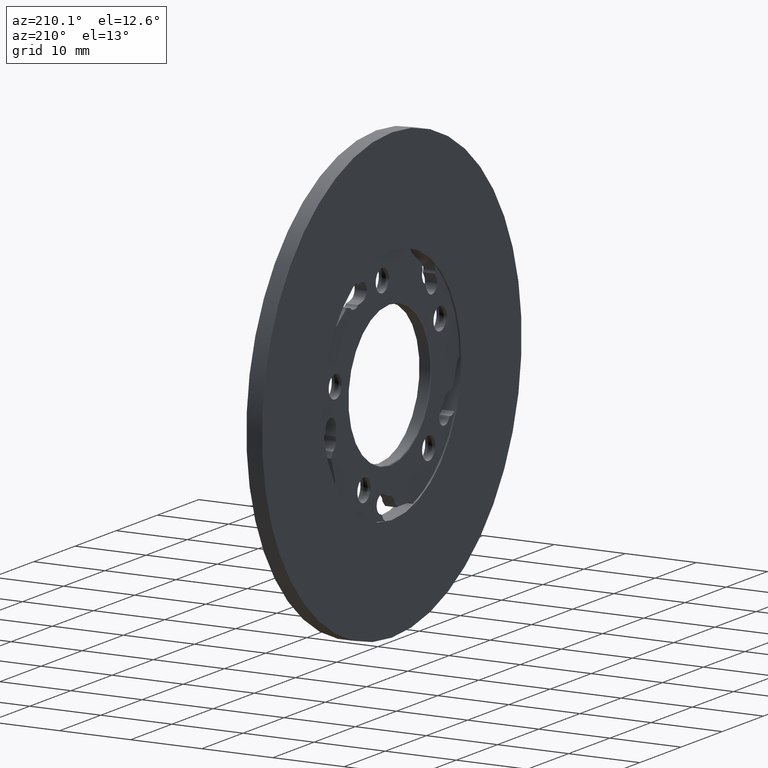
[diagram: clean part render]
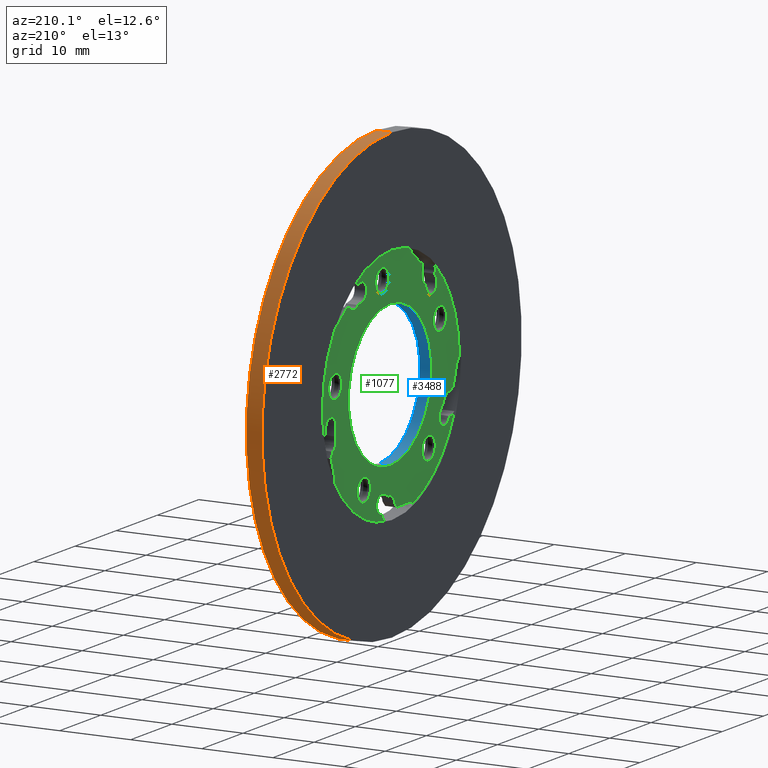
[diagram: same view with three faces highlighted in distinct colors, each labeled with its STEP entity id]
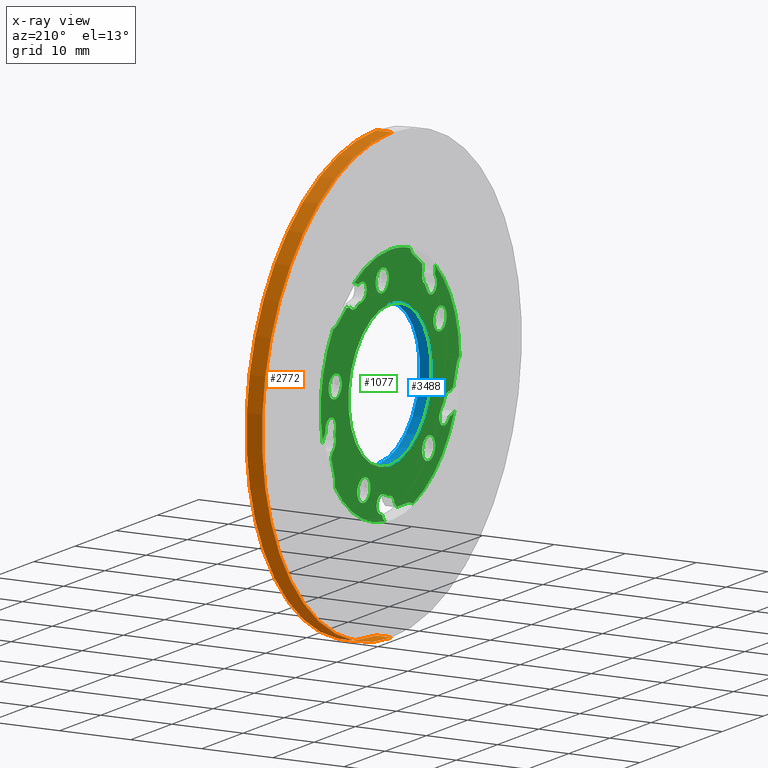
[diagram: x-ray of the same camera — body ghosted, the three highlighted faces saturated]
A machine part, auxiliary view with three faces highlighted in distinct colors.
The next image is the same camera in x-ray (body ghosted, the three faces saturated) — at least one of them is partly hidden behind the body in this view.
Their STEP definitions:

[orange] entity #2772 — the highlighted cylindrical surface (partial cylindrical patch) has radius 31.5 mm, axis along (1, -0, -0).
#100 = CYLINDRICAL_SURFACE ( 'NONE', #2942, 31.50000000000000000 ) ;
#108 = CARTESIAN_POINT ( 'NONE',  ( 0.2502733699999998840, 0.0000000000000000000, -31.50000000000000000 ) ) ;
#126 = ORIENTED_EDGE ( 'NONE', *, *, #3346, .F. ) ;
#130 = ORIENTED_EDGE ( 'NONE', *, *, #1596, .T. ) ;
#149 = VERTEX_POINT ( 'NONE', #2379 ) ;
#305 = DIRECTION ( 'NONE',  ( 1.000000000000000000, -0.0000000000000000000, -0.0000000000000000000 ) ) ;
#356 = EDGE_CURVE ( 'NONE', #660, #2560, #946, .T. ) ;
#462 = AXIS2_PLACEMENT_3D ( 'NONE', #785, #776, #1069 ) ;
#586 = CARTESIAN_POINT ( 'NONE',  ( -1.949726630000000682, 0.0000000000000000000, -31.50000000000000000 ) ) ;
#623 = EDGE_CURVE ( 'NONE', #149, #2843, #1297, .T. ) ;
#660 = VERTEX_POINT ( 'NONE', #586 ) ;
#709 = FACE_OUTER_BOUND ( 'NONE', #2116, .T. ) ;
#776 = DIRECTION ( 'NONE',  ( 1.000000000000000000, -0.0000000000000000000, -0.0000000000000000000 ) ) ;
#785 = CARTESIAN_POINT ( 'NONE',  ( -1.949726630000000682, 0.0000000000000000000, 0.0000000000000000000 ) ) ;
#946 = LINE ( 'NONE', #2911, #2407 ) ;
#1002 = ORIENTED_EDGE ( 'NONE', *, *, #356, .F. ) ;
#1069 = DIRECTION ( 'NONE',  ( 0.0000000000000000000, 0.0000000000000000000, -1.000000000000000000 ) ) ;
#1297 = LINE ( 'NONE', #2099, #3243 ) ;
#1450 = ORIENTED_EDGE ( 'NONE', *, *, #623, .T. ) ;
#1584 = CARTESIAN_POINT ( 'NONE',  ( 12.05951420477982516, 0.0000000000000000000, 0.0000000000000000000 ) ) ;
#1587 = CIRCLE ( 'NONE', #2371, 31.50000000000000000 ) ;
#1596 = EDGE_CURVE ( 'NONE', #660, #149, #2007, .T. ) ;
#1893 = DIRECTION ( 'NONE',  ( 1.000000000000000000, -0.0000000000000000000, -0.0000000000000000000 ) ) ;
#2007 = CIRCLE ( 'NONE', #462, 31.50000000000000000 ) ;
#2099 = CARTESIAN_POINT ( 'NONE',  ( 12.05951420477982516, 3.857637417314162689E-15, 31.50000000000000000 ) ) ;
#2116 = EDGE_LOOP ( 'NONE', ( #130, #1450, #126, #1002 ) ) ;
#2163 = DIRECTION ( 'NONE',  ( 0.0000000000000000000, 0.0000000000000000000, -1.000000000000000000 ) ) ;
#2176 = DIRECTION ( 'NONE',  ( 0.0000000000000000000, 0.0000000000000000000, -1.000000000000000000 ) ) ;
#2206 = DIRECTION ( 'NONE',  ( 1.000000000000000000, -0.0000000000000000000, -0.0000000000000000000 ) ) ;
#2236 = CARTESIAN_POINT ( 'NONE',  ( 0.2502733699999998840, 3.857637417314162689E-15, 31.50000000000000000 ) ) ;
#2371 = AXIS2_PLACEMENT_3D ( 'NONE', #3119, #2805, #2176 ) ;
#2379 = CARTESIAN_POINT ( 'NONE',  ( -1.949726630000000682, 3.857637417314162689E-15, 31.50000000000000000 ) ) ;
#2407 = VECTOR ( 'NONE', #2206, 1000.000000000000000 ) ;
#2560 = VERTEX_POINT ( 'NONE', #108 ) ;
#2772 = ADVANCED_FACE ( 'NONE', ( #709 ), #100, .T. ) ;
#2805 = DIRECTION ( 'NONE',  ( 1.000000000000000000, -0.0000000000000000000, -0.0000000000000000000 ) ) ;
#2843 = VERTEX_POINT ( 'NONE', #2236 ) ;
#2911 = CARTESIAN_POINT ( 'NONE',  ( 12.05951420477982516, 0.0000000000000000000, -31.50000000000000000 ) ) ;
#2942 = AXIS2_PLACEMENT_3D ( 'NONE', #1584, #1893, #2163 ) ;
#3119 = CARTESIAN_POINT ( 'NONE',  ( 0.2502733699999998840, 0.0000000000000000000, 0.0000000000000000000 ) ) ;
#3243 = VECTOR ( 'NONE', #305, 1000.000000000000000 ) ;
#3346 = EDGE_CURVE ( 'NONE', #2560, #2843, #1587, .T. ) ;

[blue] entity #3488 — the highlighted cylindrical surface (partial cylindrical patch) has radius 10 mm, axis along (1, -0, -0).
#40 = DIRECTION ( 'NONE',  ( 1.000000000000000000, 0.0000000000000000000, 0.0000000000000000000 ) ) ;
#57 = ORIENTED_EDGE ( 'NONE', *, *, #1781, .T. ) ;
#212 = CIRCLE ( 'NONE', #1472, 10.00000000000000000 ) ;
#378 = CARTESIAN_POINT ( 'NONE',  ( -1.600000000000021627, 1.224646799147353256E-15, 10.00000000000000000 ) ) ;
#525 = VERTEX_POINT ( 'NONE', #1706 ) ;
#585 = CARTESIAN_POINT ( 'NONE',  ( -29.98427124746191197, 1.224646799147353256E-15, 10.00000000000000000 ) ) ;
#604 = CYLINDRICAL_SURFACE ( 'NONE', #2767, 10.00000000000000000 ) ;
#644 = CARTESIAN_POINT ( 'NONE',  ( -0.09999999999999939493, 0.0000000000000000000, -10.00000000000000000 ) ) ;
#721 = CARTESIAN_POINT ( 'NONE',  ( -29.98427124746191197, 0.0000000000000000000, 0.0000000000000000000 ) ) ;
#791 = ORIENTED_EDGE ( 'NONE', *, *, #3679, .T. ) ;
#877 = DIRECTION ( 'NONE',  ( 1.000000000000000000, -0.0000000000000000000, -0.0000000000000000000 ) ) ;
#1252 = VECTOR ( 'NONE', #1700, 1000.000000000000000 ) ;
#1253 = EDGE_CURVE ( 'NONE', #3431, #2789, #2583, .T. ) ;
#1329 = DIRECTION ( 'NONE',  ( 0.0000000000000000000, 0.0000000000000000000, -1.000000000000000000 ) ) ;
#1342 = DIRECTION ( 'NONE',  ( 1.000000000000000000, -0.0000000000000000000, -0.0000000000000000000 ) ) ;
#1472 = AXIS2_PLACEMENT_3D ( 'NONE', #2325, #1674, #1953 ) ;
#1601 = ORIENTED_EDGE ( 'NONE', *, *, #1253, .T. ) ;
#1674 = DIRECTION ( 'NONE',  ( -1.000000000000000000, -0.0000000000000000000, -0.0000000000000000000 ) ) ;
#1700 = DIRECTION ( 'NONE',  ( 1.000000000000000000, -0.0000000000000000000, -0.0000000000000000000 ) ) ;
#1706 = CARTESIAN_POINT ( 'NONE',  ( -1.600000000000021627, 0.0000000000000000000, -10.00000000000000000 ) ) ;
#1708 = CARTESIAN_POINT ( 'NONE',  ( -29.98427124746191197, 0.0000000000000000000, -10.00000000000000000 ) ) ;
#1781 = EDGE_CURVE ( 'NONE', #525, #2275, #212, .T. ) ;
#1919 = CARTESIAN_POINT ( 'NONE',  ( -0.09999999999999939493, 1.224646799147353256E-15, 10.00000000000000000 ) ) ;
#1953 = DIRECTION ( 'NONE',  ( 0.0000000000000000000, 0.0000000000000000000, 1.000000000000000000 ) ) ;
#2008 = VECTOR ( 'NONE', #877, 1000.000000000000000 ) ;
#2129 = EDGE_LOOP ( 'NONE', ( #57, #791, #1601, #3096 ) ) ;
#2275 = VERTEX_POINT ( 'NONE', #378 ) ;
#2304 = LINE ( 'NONE', #585, #2008 ) ;
#2318 = EDGE_CURVE ( 'NONE', #525, #2789, #2390, .T. ) ;
#2325 = CARTESIAN_POINT ( 'NONE',  ( -1.600000000000021627, 0.0000000000000000000, 0.0000000000000000000 ) ) ;
#2390 = LINE ( 'NONE', #1708, #1252 ) ;
#2583 = CIRCLE ( 'NONE', #3221, 10.00000000000000000 ) ;
#2752 = CARTESIAN_POINT ( 'NONE',  ( -0.09999999999999939493, 0.0000000000000000000, 0.0000000000000000000 ) ) ;
#2767 = AXIS2_PLACEMENT_3D ( 'NONE', #721, #1342, #1329 ) ;
#2783 = DIRECTION ( 'NONE',  ( 0.0000000000000000000, 0.0000000000000000000, -1.000000000000000000 ) ) ;
#2789 = VERTEX_POINT ( 'NONE', #644 ) ;
#2804 = FACE_OUTER_BOUND ( 'NONE', #2129, .T. ) ;
#3096 = ORIENTED_EDGE ( 'NONE', *, *, #2318, .F. ) ;
#3221 = AXIS2_PLACEMENT_3D ( 'NONE', #2752, #40, #2783 ) ;
#3431 = VERTEX_POINT ( 'NONE', #1919 ) ;
#3488 = ADVANCED_FACE ( 'NONE', ( #2804 ), #604, .F. ) ;
#3679 = EDGE_CURVE ( 'NONE', #2275, #3431, #2304, .T. ) ;

[green] entity #1077 — the highlighted planar face has unit normal (-1, 0, 0).
#7 = ORIENTED_EDGE ( 'NONE', *, *, #2552, .T. ) ;
#10 = ORIENTED_EDGE ( 'NONE', *, *, #3157, .T. ) ;
#11 = CARTESIAN_POINT ( 'NONE',  ( -1.700000000000012390, -0.6856820477857981100, -14.19698568167272335 ) ) ;
#14 = CARTESIAN_POINT ( 'NONE',  ( -1.700000000000012168, 0.0000000000000000000, 0.0000000000000000000 ) ) ;
#16 = ORIENTED_EDGE ( 'NONE', *, *, #2529, .F. ) ;
#18 = VERTEX_POINT ( 'NONE', #1988 ) ;
#21 = CIRCLE ( 'NONE', #3494, 4.642357545004230701 ) ;
#23 = EDGE_CURVE ( 'NONE', #1727, #2082, #891, .T. ) ;
#24 = CARTESIAN_POINT ( 'NONE',  ( -1.700000000000005285, 8.683700799991216357, 18.52375183478842402 ) ) ;
#26 = CIRCLE ( 'NONE', #1577, 1.250000000000001110 ) ;
#27 = EDGE_CURVE ( 'NONE', #102, #63, #2173, .T. ) ;
#30 = DIRECTION ( 'NONE',  ( 1.000000000000000000, -7.861527457316623400E-16, 0.0000000000000000000 ) ) ;
#32 = CARTESIAN_POINT ( 'NONE',  ( -1.700000000000021938, -11.88309538822138123, -13.77110247895175377 ) ) ;
#34 = DIRECTION ( 'NONE',  ( 1.000000000000000000, -7.861527457316623400E-16, 0.0000000000000000000 ) ) ;
#35 = LINE ( 'NONE', #3582, #1310 ) ;
#44 = CIRCLE ( 'NONE', #1254, 1.250000000000001110 ) ;
#46 = DIRECTION ( 'NONE',  ( -8.673617379884043361E-16, -1.000000000000000000, 2.081668171172170407E-14 ) ) ;
#54 = DIRECTION ( 'NONE',  ( 1.000000000000000000, -7.861527457316623400E-16, 0.0000000000000000000 ) ) ;
#59 = CIRCLE ( 'NONE', #647, 1.599999999999997868 ) ;
#60 = EDGE_CURVE ( 'NONE', #109, #3762, #3416, .T. ) ;
#61 = CIRCLE ( 'NONE', #1824, 1.000000000000000000 ) ;
#63 = VERTEX_POINT ( 'NONE', #3233 ) ;
#69 = VERTEX_POINT ( 'NONE', #3542 ) ;
#73 = CARTESIAN_POINT ( 'NONE',  ( -1.700000000000002398, 6.337866097609665239, -11.91979250359544018 ) ) ;
#86 = DIRECTION ( 'NONE',  ( -8.673617379884035472E-16, -1.000000000000000000, -1.734723475976807094E-15 ) ) ;
#92 = EDGE_CURVE ( 'NONE', #1135, #3273, #1184, .T. ) ;
#93 = AXIS2_PLACEMENT_3D ( 'NONE', #1428, #2349, #533 ) ;
#102 = VERTEX_POINT ( 'NONE', #3891 ) ;
#104 = ORIENTED_EDGE ( 'NONE', *, *, #3873, .T. ) ;
#107 = DIRECTION ( 'NONE',  ( 2.474760902287196133E-16, 0.3147939017860921784, -0.9491600494112086839 ) ) ;
#109 = VERTEX_POINT ( 'NONE', #2101 ) ;
#112 = CIRCLE ( 'NONE', #492, 0.9999999999999991118 ) ;
#114 = CIRCLE ( 'NONE', #1311, 0.9999999999999991118 ) ;
#117 = CARTESIAN_POINT ( 'NONE',  ( -1.700000000000002398, 7.859556523681903606, -11.42536531259550792 ) ) ;
#118 = DIRECTION ( 'NONE',  ( -8.673617379884043361E-16, -1.000000000000000000, 6.938893903907234689E-15 ) ) ;
#125 = CARTESIAN_POINT ( 'NONE',  ( -1.700000000000010614, 1.485682047785786830, -16.57217805452203763 ) ) ;
#134 = CARTESIAN_POINT ( 'NONE',  ( -1.700000000000024380, -14.93372376744527230, 13.98284434792277331 ) ) ;
#142 = DIRECTION ( 'NONE',  ( 1.000000000000000000, -7.861527457316623400E-16, 0.0000000000000000000 ) ) ;
#145 = ORIENTED_EDGE ( 'NONE', *, *, #3607, .T. ) ;
#147 = VERTEX_POINT ( 'NONE', #1171 ) ;
#157 = CARTESIAN_POINT ( 'NONE',  ( -1.700000000000002398, 3.400527289033085765, 12.87419173701129793 ) ) ;
#158 = ORIENTED_EDGE ( 'NONE', *, *, #595, .T. ) ;
#170 = ORIENTED_EDGE ( 'NONE', *, *, #3427, .T. ) ;
#189 = EDGE_CURVE ( 'NONE', #350, #1735, #1789, .T. ) ;
#199 = DIRECTION ( 'NONE',  ( -7.589415207398533010E-16, -1.000000000000000000, 0.0000000000000000000 ) ) ;
#203 = DIRECTION ( 'NONE',  ( -1.000000000000000000, 7.861527457316623400E-16, -0.0000000000000000000 ) ) ;
#211 = EDGE_CURVE ( 'NONE', #1369, #2826, #557, .T. ) ;
#222 = DIRECTION ( 'NONE',  ( 1.000000000000000000, -7.861527457316623400E-16, 0.0000000000000000000 ) ) ;
#223 = DIRECTION ( 'NONE',  ( 1.000000000000000000, -7.861527457316623400E-16, 0.0000000000000000000 ) ) ;
#229 = CIRCLE ( 'NONE', #3349, 1.599999999999997424 ) ;
#238 = VERTEX_POINT ( 'NONE', #655 ) ;
#246 = CARTESIAN_POINT ( 'NONE',  ( -1.700000000000005285, 8.538939833916458610, 14.28043567720009754 ) ) ;
#247 = CARTESIAN_POINT ( 'NONE',  ( -1.700000000000016609, -4.400000000000001243, -17.55699999999999861 ) ) ;
#250 = ORIENTED_EDGE ( 'NONE', *, *, #1357, .T. ) ;
#251 = DIRECTION ( 'NONE',  ( -7.940550357689774055E-16, -1.000000000000000000, 0.0000000000000000000 ) ) ;
#252 = DIRECTION ( 'NONE',  ( -7.893543919357623028E-16, -1.000000000000000000, 0.0000000000000000000 ) ) ;
#253 = LINE ( 'NONE', #32, #3391 ) ;
#258 = DIRECTION ( 'NONE',  ( 1.000000000000000000, -7.861527457316623400E-16, 0.0000000000000000000 ) ) ;
#262 = DIRECTION ( 'NONE',  ( 1.000000000000000000, -7.861527457316623400E-16, 0.0000000000000000000 ) ) ;
#263 = CIRCLE ( 'NONE', #2588, 2.000000000000001776 ) ;
#271 = CARTESIAN_POINT ( 'NONE',  ( -1.700000000000010836, 1.604842669057548132, -13.31410342617813036 ) ) ;
#274 = CARTESIAN_POINT ( 'NONE',  ( -1.700000000000005951, 7.785980641717750395, 11.43803593460527246 ) ) ;
#289 = CIRCLE ( 'NONE', #841, 1.250000000000001110 ) ;
#291 = VERTEX_POINT ( 'NONE', #2193 ) ;
#295 = VERTEX_POINT ( 'NONE', #968 ) ;
#298 = DIRECTION ( 'NONE',  ( -1.000000000000000000, 7.861527457316623400E-16, -0.0000000000000000000 ) ) ;
#302 = EDGE_CURVE ( 'NONE', #1007, #427, #59, .T. ) ;
#306 = DIRECTION ( 'NONE',  ( -7.893543919357625000E-16, -1.000000000000000000, 0.0000000000000000000 ) ) ;
#308 = LINE ( 'NONE', #2507, #3769 ) ;
#321 = VERTEX_POINT ( 'NONE', #3396 ) ;
#330 = CIRCLE ( 'NONE', #1054, 0.9999999999999991118 ) ;
#331 = DIRECTION ( 'NONE',  ( -1.000000000000000000, -0.0000000000000000000, 0.0000000000000000000 ) ) ;
#348 = CARTESIAN_POINT ( 'NONE',  ( -1.700000000000001954, 13.87942044974865574, 11.61765626015414909 ) ) ;
#350 = VERTEX_POINT ( 'NONE', #420 ) ;
#351 = EDGE_CURVE ( 'NONE', #2082, #1821, #3103, .T. ) ;
#355 = VECTOR ( 'NONE', #2710, 1000.000000000000114 ) ;
#359 = CARTESIAN_POINT ( 'NONE',  ( -1.700000000000005285, 8.683700799991214581, 18.52375183478842757 ) ) ;
#361 = VERTEX_POINT ( 'NONE', #1973 ) ;
#366 = CIRCLE ( 'NONE', #766, 2.000000000000000888 ) ;
#371 = DIRECTION ( 'NONE',  ( -1.000000000000000000, 7.861527457316623400E-16, -0.0000000000000000000 ) ) ;
#372 = DIRECTION ( 'NONE',  ( 1.000000000000000000, -7.861527457316623400E-16, 0.0000000000000000000 ) ) ;
#375 = DIRECTION ( 'NONE',  ( -8.673617379884043361E-16, -1.000000000000000000, 1.734723475976808672E-15 ) ) ;
#380 = AXIS2_PLACEMENT_3D ( 'NONE', #3849, #2355, #2931 ) ;
#382 = CIRCLE ( 'NONE', #1755, 1.250000000000001110 ) ;
#389 = CARTESIAN_POINT ( 'NONE',  ( -1.700000000000008837, 3.862726624353946203, -20.09018129948315945 ) ) ;
#395 = VERTEX_POINT ( 'NONE', #1013 ) ;
#400 = AXIS2_PLACEMENT_3D ( 'NONE', #3634, #2128, #306 ) ;
#406 = AXIS2_PLACEMENT_3D ( 'NONE', #2689, #1478, #3036 ) ;
#407 = CARTESIAN_POINT ( 'NONE',  ( -1.700000000000002398, 13.29490466566480755, 2.344250398503564981 ) ) ;
#410 = CARTESIAN_POINT ( 'NONE',  ( -1.700000000000018607, -7.901671604657806824, 12.73243894145851840 ) ) ;
#412 = CIRCLE ( 'NONE', #93, 1.599999999999997646 ) ;
#420 = CARTESIAN_POINT ( 'NONE',  ( -1.700000000000001954, 13.82777079898891515, 9.618323292993251172 ) ) ;
#421 = CIRCLE ( 'NONE', #3379, 16.84397186645439248 ) ;
#425 = AXIS2_PLACEMENT_3D ( 'NONE', #1288, #2198, #3374 ) ;
#427 = VERTEX_POINT ( 'NONE', #117 ) ;
#441 = ORIENTED_EDGE ( 'NONE', *, *, #2830, .F. ) ;
#442 = VECTOR ( 'NONE', #2946, 1000.000000000000227 ) ;
#445 = DIRECTION ( 'NONE',  ( -1.000000000000000000, 7.861527457316623400E-16, -0.0000000000000000000 ) ) ;
#447 = AXIS2_PLACEMENT_3D ( 'NONE', #1699, #203, #251 ) ;
#449 = CARTESIAN_POINT ( 'NONE',  ( -1.700000000000017497, -7.364337782289240408, 13.87900493653443057 ) ) ;
#453 = EDGE_CURVE ( 'NONE', #2826, #2709, #308, .T. ) ;
#468 = AXIS2_PLACEMENT_3D ( 'NONE', #3878, #3624, #823 ) ;
#470 = EDGE_LOOP ( 'NONE', ( #1775, #3619, #3064, #2600, #1795, #1839, #3889, #3226, #2119, #170, #104, #621, #3145, #664, #3253, #16, #7, #3759, #843, #720, #1026, #1683, #3284, #2905, #1234, #3142, #2412, #2770, #497, #1102, #2420, #3111, #10, #2759, #799, #2665, #1235, #1370, #3280, #3115, #3350, #2437, #2512, #859, #3636, #2470, #158, #3904, #1223, #3559, #1258, #2838, #3712, #145, #825, #2244, #250, #1182, #441, #3893, #3066, #2231, #3373, #2982, #3011, #1943, #3595, #1819, #853, #2852, #1034, #759, #518, #1682, #2188 ) ) ;
#475 = EDGE_CURVE ( 'NONE', #2709, #18, #2875, .T. ) ;
#476 = VECTOR ( 'NONE', #1324, 1000.000000000000227 ) ;
#489 = DIRECTION ( 'NONE',  ( -8.673617379884027583E-16, -1.000000000000000000, -4.163336342344333082E-15 ) ) ;
#491 = EDGE_CURVE ( 'NONE', #3180, #698, #2920, .T. ) ;
#492 = AXIS2_PLACEMENT_3D ( 'NONE', #1841, #2760, #46 ) ;
#494 = EDGE_CURVE ( 'NONE', #943, #3713, #3156, .T. ) ;
#497 = ORIENTED_EDGE ( 'NONE', *, *, #725, .T. ) ;
#498 = DIRECTION ( 'NONE',  ( -8.673617379884043361E-16, -1.000000000000000000, -9.540979117872446908E-15 ) ) ;
#516 = AXIS2_PLACEMENT_3D ( 'NONE', #3457, #223, #3817 ) ;
#518 = ORIENTED_EDGE ( 'NONE', *, *, #2138, .T. ) ;
#533 = DIRECTION ( 'NONE',  ( 0.0000000000000000000, 0.0000000000000000000, 1.000000000000000000 ) ) ;
#534 = EDGE_CURVE ( 'NONE', #2833, #291, #2775, .T. ) ;
#540 = CIRCLE ( 'NONE', #2440, 1.599999999999997868 ) ;
#543 = VERTEX_POINT ( 'NONE', #3872 ) ;
#553 = DIRECTION ( 'NONE',  ( -7.852819162365090611E-16, -1.000000000000000000, 0.0000000000000000000 ) ) ;
#557 = CIRCLE ( 'NONE', #1525, 0.9999999999999991118 ) ;
#571 = CARTESIAN_POINT ( 'NONE',  ( -1.700000000000021050, -7.893486849031516428, 11.56357996154824264 ) ) ;
#578 = CARTESIAN_POINT ( 'NONE',  ( -1.700000000000005285, 8.683700799991214581, 18.52375183478842757 ) ) ;
#579 = EDGE_CURVE ( 'NONE', #63, #1137, #2240, .T. ) ;
#581 = CARTESIAN_POINT ( 'NONE',  ( -1.700000000000005285, 8.552316286970850001, 11.08047634337056309 ) ) ;
#589 = CARTESIAN_POINT ( 'NONE',  ( -1.700000000000007061, 6.904852169490898639, 12.90631692302171807 ) ) ;
#595 = EDGE_CURVE ( 'NONE', #1004, #321, #2089, .T. ) ;
#596 = CARTESIAN_POINT ( 'NONE',  ( -1.700000000000007061, 8.558396492904661201, 11.08049482799350471 ) ) ;
#601 = CIRCLE ( 'NONE', #2867, 7.142357545004234254 ) ;
#606 = VERTEX_POINT ( 'NONE', #2611 ) ;
#621 = ORIENTED_EDGE ( 'NONE', *, *, #3478, .T. ) ;
#628 = CARTESIAN_POINT ( 'NONE',  ( -1.700000000000012612, 0.0000000000000000000, 0.0000000000000000000 ) ) ;
#634 = DIRECTION ( 'NONE',  ( 2.429345586056196231E-16, 0.3090169943749589421, -0.9510565162951497564 ) ) ;
#636 = DIRECTION ( 'NONE',  ( -8.673617379884037444E-16, -1.000000000000000000, 2.081668171172168829E-14 ) ) ;
#645 = EDGE_CURVE ( 'NONE', #2022, #1136, #1702, .T. ) ;
#647 = AXIS2_PLACEMENT_3D ( 'NONE', #73, #331, #2143 ) ;
#651 = CARTESIAN_POINT ( 'NONE',  ( -1.700000000000022604, -14.71912152957911246, -5.721476349964781605 ) ) ;
#655 = CARTESIAN_POINT ( 'NONE',  ( -1.700000000000011724, 1.210936759361281867, -16.77435587246332460 ) ) ;
#657 = EDGE_CURVE ( 'NONE', #3187, #1646, #114, .T. ) ;
#661 = LINE ( 'NONE', #1939, #1078 ) ;
#664 = ORIENTED_EDGE ( 'NONE', *, *, #1416, .F. ) ;
#666 = LINE ( 'NONE', #3681, #1883 ) ;
#667 = VERTEX_POINT ( 'NONE', #274 ) ;
#683 = FACE_BOUND ( 'NONE', #1551, .T. ) ;
#684 = CARTESIAN_POINT ( 'NONE',  ( -1.700000000000019940, -10.83938741597630084, 12.85896820190453127 ) ) ;
#689 = CIRCLE ( 'NONE', #1852, 7.142357545004234254 ) ;
#698 = VERTEX_POINT ( 'NONE', #2388 ) ;
#702 = CIRCLE ( 'NONE', #743, 0.9999999999999991118 ) ;
#703 = EDGE_CURVE ( 'NONE', #1801, #361, #26, .T. ) ;
#718 = AXIS2_PLACEMENT_3D ( 'NONE', #2491, #1299, #1269 ) ;
#720 = ORIENTED_EDGE ( 'NONE', *, *, #491, .T. ) ;
#725 = EDGE_CURVE ( 'NONE', #2186, #2444, #2329, .T. ) ;
#737 = LINE ( 'NONE', #1030, #476 ) ;
#743 = AXIS2_PLACEMENT_3D ( 'NONE', #2519, #1280, #118 ) ;
#748 = EDGE_CURVE ( 'NONE', #543, #943, #1012, .T. ) ;
#759 = ORIENTED_EDGE ( 'NONE', *, *, #3710, .T. ) ;
#766 = AXIS2_PLACEMENT_3D ( 'NONE', #247, #2669, #3283 ) ;
#784 = AXIS2_PLACEMENT_3D ( 'NONE', #2028, #222, #1405 ) ;
#797 = DIRECTION ( 'NONE',  ( -7.893543919357625000E-16, -1.000000000000000000, -7.043469958811419382E-15 ) ) ;
#799 = ORIENTED_EDGE ( 'NONE', *, *, #1656, .T. ) ;
#804 = DIRECTION ( 'NONE',  ( 1.000000000000000000, -7.861527457316623400E-16, 0.0000000000000000000 ) ) ;
#812 = CARTESIAN_POINT ( 'NONE',  ( -1.700000000000021050, -10.94282388370960568, 12.53391168263161681 ) ) ;
#819 = DIRECTION ( 'NONE',  ( -8.673617379884043361E-16, -1.000000000000000000, 0.0000000000000000000 ) ) ;
#821 = EDGE_CURVE ( 'NONE', #951, #2813, #2194, .T. ) ;
#822 = AXIS2_PLACEMENT_3D ( 'NONE', #1598, #3495, #1661 ) ;
#823 = DIRECTION ( 'NONE',  ( -7.852819162365090611E-16, -1.000000000000000000, 0.0000000000000000000 ) ) ;
#825 = ORIENTED_EDGE ( 'NONE', *, *, #2739, .T. ) ;
#835 = CARTESIAN_POINT ( 'NONE',  ( -1.700000000000024380, -15.30197692695307410, -6.534052245344433629 ) ) ;
#838 = CARTESIAN_POINT ( 'NONE',  ( -1.700000000000003508, 10.92401255753882516, 11.29274982644767711 ) ) ;
#841 = AXIS2_PLACEMENT_3D ( 'NONE', #2000, #1376, #489 ) ;
#843 = ORIENTED_EDGE ( 'NONE', *, *, #1050, .T. ) ;
#847 = DIRECTION ( 'NONE',  ( -8.673617379884035472E-16, -1.000000000000000000, 3.469446951953614189E-15 ) ) ;
#851 = AXIS2_PLACEMENT_3D ( 'NONE', #134, #2241, #2261 ) ;
#853 = ORIENTED_EDGE ( 'NONE', *, *, #3626, .T. ) ;
#857 = CARTESIAN_POINT ( 'NONE',  ( -1.700000000000012168, -0.09298867055233693557, -15.00241386629478590 ) ) ;
#859 = ORIENTED_EDGE ( 'NONE', *, *, #60, .F. ) ;
#876 = AXIS2_PLACEMENT_3D ( 'NONE', #3484, #142, #1600 ) ;
#878 = CARTESIAN_POINT ( 'NONE',  ( -1.700000000000017497, -5.584500394664368095, 15.17213249157789079 ) ) ;
#881 = DIRECTION ( 'NONE',  ( -7.589415207398531038E-16, -1.000000000000000000, 0.0000000000000000000 ) ) ;
#883 = LINE ( 'NONE', #991, #1164 ) ;
#885 = DIRECTION ( 'NONE',  ( -1.000000000000000000, 7.861527457316623400E-16, -0.0000000000000000000 ) ) ;
#887 = CARTESIAN_POINT ( 'NONE',  ( -1.700000000000005285, 8.558396492904654096, 11.08049482799350471 ) ) ;
#889 = DIRECTION ( 'NONE',  ( -1.000000000000000000, 7.861527457316623400E-16, -0.0000000000000000000 ) ) ;
#891 = CIRCLE ( 'NONE', #447, 4.642357545004228925 ) ;
#892 = CIRCLE ( 'NONE', #876, 7.142357545004236030 ) ;
#893 = EDGE_CURVE ( 'NONE', #3799, #3007, #1415, .T. ) ;
#894 = DIRECTION ( 'NONE',  ( 0.0000000000000000000, -0.9510565162951545304, 0.3090169943749446757 ) ) ;
#895 = AXIS2_PLACEMENT_3D ( 'NONE', #389, #372, #3742 ) ;
#898 = CARTESIAN_POINT ( 'NONE',  ( -1.700000000000019273, -8.539908286874201337, 15.49703892528431481 ) ) ;
#899 = VERTEX_POINT ( 'NONE', #581 ) ;
#901 = EDGE_CURVE ( 'NONE', #2337, #2228, #910, .T. ) ;
#905 = AXIS2_PLACEMENT_3D ( 'NONE', #628, #3700, #1262 ) ;
#910 = CIRCLE ( 'NONE', #3541, 1.599999999999997868 ) ;
#912 = CARTESIAN_POINT ( 'NONE',  ( -1.700000000000021050, -10.94282388370960568, 12.53391168263161859 ) ) ;
#915 = DIRECTION ( 'NONE',  ( -8.673617379884043361E-16, -1.000000000000000000, -1.804112415015880893E-13 ) ) ;
#924 = CARTESIAN_POINT ( 'NONE',  ( -1.700000000000002398, 13.29490466566480755, 0.7442503985035673342 ) ) ;
#926 = CARTESIAN_POINT ( 'NONE',  ( -1.700000000000022604, -14.01969505273036098, -4.746385275509200419 ) ) ;
#934 = DIRECTION ( 'NONE',  ( -7.940550357689771096E-16, -1.000000000000000000, 0.0000000000000000000 ) ) ;
#939 = VERTEX_POINT ( 'NONE', #2094 ) ;
#943 = VERTEX_POINT ( 'NONE', #2403 ) ;
#951 = VERTEX_POINT ( 'NONE', #2715 ) ;
#965 = EDGE_CURVE ( 'NONE', #3091, #2165, #21, .T. ) ;
#968 = CARTESIAN_POINT ( 'NONE',  ( -1.700000000000015721, -2.199999999999999734, -15.55699999999999861 ) ) ;
#982 = EDGE_CURVE ( 'NONE', #1735, #3090, #3155, .T. ) ;
#983 = CIRCLE ( 'NONE', #400, 7.142357545004234254 ) ;
#991 = CARTESIAN_POINT ( 'NONE',  ( -1.700000000000010614, 1.485682047785781945, -16.57217805452204118 ) ) ;
#997 = VECTOR ( 'NONE', #1024, 1000.000000000000000 ) ;
#1004 = VERTEX_POINT ( 'NONE', #2136 ) ;
#1005 = DIRECTION ( 'NONE',  ( -8.673617379884027583E-16, -1.000000000000000000, 0.0000000000000000000 ) ) ;
#1007 = VERTEX_POINT ( 'NONE', #3042 ) ;
#1009 = AXIS2_PLACEMENT_3D ( 'NONE', #651, #54, #1569 ) ;
#1012 = CIRCLE ( 'NONE', #3037, 0.9999999999999991118 ) ;
#1013 = CARTESIAN_POINT ( 'NONE',  ( -1.700000000000005285, 8.930685375918891111, 14.28153517498226144 ) ) ;
#1024 = DIRECTION ( 'NONE',  ( 7.861527457316623400E-16, 1.000000000000000000, 7.885106708985483117E-16 ) ) ;
#1026 = ORIENTED_EDGE ( 'NONE', *, *, #2797, .T. ) ;
#1030 = CARTESIAN_POINT ( 'NONE',  ( -1.700000000000017497, -7.893486849031516428, 11.56357996154824086 ) ) ;
#1034 = ORIENTED_EDGE ( 'NONE', *, *, #645, .T. ) ;
#1036 = DIRECTION ( 'NONE',  ( -1.000000000000000000, 7.861527457316623400E-16, -0.0000000000000000000 ) ) ;
#1041 = VERTEX_POINT ( 'NONE', #3361 ) ;
#1048 = VERTEX_POINT ( 'NONE', #912 ) ;
#1050 = EDGE_CURVE ( 'NONE', #395, #3180, #112, .T. ) ;
#1052 = ORIENTED_EDGE ( 'NONE', *, *, #534, .F. ) ;
#1054 = AXIS2_PLACEMENT_3D ( 'NONE', #2056, #258, #2373 ) ;
#1063 = CARTESIAN_POINT ( 'NONE',  ( -1.700000000000024380, -15.61955199648494208, -6.304679505495139225 ) ) ;
#1072 = EDGE_CURVE ( 'NONE', #2372, #3100, #253, .T. ) ;
#1077 = ADVANCED_FACE ( 'NONE', ( #2917, #1295, #2327, #3117, #1757, #683, #1380 ), #3335, .T. ) ;
#1078 = VECTOR ( 'NONE', #1613, 1000.000000000000114 ) ;
#1079 = EDGE_LOOP ( 'NONE', ( #1229, #2264 ) ) ;
#1085 = LINE ( 'NONE', #3138, #997 ) ;
#1087 = VERTEX_POINT ( 'NONE', #878 ) ;
#1102 = ORIENTED_EDGE ( 'NONE', *, *, #2801, .F. ) ;
#1105 = CARTESIAN_POINT ( 'NONE',  ( -1.700000000000002398, -12.13371962503879153, 5.918010481652471455 ) ) ;
#1121 = AXIS2_PLACEMENT_3D ( 'NONE', #2330, #3833, #2005 ) ;
#1126 = DIRECTION ( 'NONE',  ( -8.673617379884027583E-16, -1.000000000000000000, 0.0000000000000000000 ) ) ;
#1135 = VERTEX_POINT ( 'NONE', #596 ) ;
#1136 = VERTEX_POINT ( 'NONE', #3598 ) ;
#1137 = VERTEX_POINT ( 'NONE', #271 ) ;
#1142 = DIRECTION ( 'NONE',  ( 1.000000000000000000, -7.861527457316623400E-16, 0.0000000000000000000 ) ) ;
#1145 = AXIS2_PLACEMENT_3D ( 'NONE', #2421, #2742, #894 ) ;
#1147 = DIRECTION ( 'NONE',  ( -1.000000000000000000, 0.0000000000000000000, 0.0000000000000000000 ) ) ;
#1160 = CARTESIAN_POINT ( 'NONE',  ( -1.700000000000002398, -12.13371962503879153, 5.918010481652471455 ) ) ;
#1164 = VECTOR ( 'NONE', #1619, 1000.000000000000000 ) ;
#1165 = DIRECTION ( 'NONE',  ( -7.589415207398524136E-16, -1.000000000000000000, 0.0000000000000000000 ) ) ;
#1168 = EDGE_LOOP ( 'NONE', ( #1599, #1052 ) ) ;
#1171 = CARTESIAN_POINT ( 'NONE',  ( -1.700000000000024825, -15.57916042140408841, -6.335230330096425000 ) ) ;
#1174 = DIRECTION ( 'NONE',  ( -1.000000000000000000, 0.0000000000000000000, 0.0000000000000000000 ) ) ;
#1176 = AXIS2_PLACEMENT_3D ( 'NONE', #2856, #445, #3743 ) ;
#1182 = ORIENTED_EDGE ( 'NONE', *, *, #3581, .F. ) ;
#1183 = EDGE_CURVE ( 'NONE', #3886, #102, #1441, .T. ) ;
#1184 = LINE ( 'NONE', #887, #2067 ) ;
#1187 = DIRECTION ( 'NONE',  ( -8.673617379884027583E-16, -1.000000000000000000, 0.0000000000000000000 ) ) ;
#1189 = VERTEX_POINT ( 'NONE', #3657 ) ;
#1193 = EDGE_CURVE ( 'NONE', #321, #238, #1267, .T. ) ;
#1195 = DIRECTION ( 'NONE',  ( 0.0000000000000000000, 0.5877852522924799095, -0.8090169943749424553 ) ) ;
#1197 = VERTEX_POINT ( 'NONE', #11 ) ;
#1203 = DIRECTION ( 'NONE',  ( -7.852819162365090611E-16, -1.000000000000000000, 0.0000000000000000000 ) ) ;
#1205 = CIRCLE ( 'NONE', #3704, 2.000000000000001776 ) ;
#1208 = CARTESIAN_POINT ( 'NONE',  ( -1.700000000000019273, -10.14092014699084032, 10.55517591385170562 ) ) ;
#1209 = VERTEX_POINT ( 'NONE', #2766 ) ;
#1212 = VERTEX_POINT ( 'NONE', #2746 ) ;
#1214 = CIRCLE ( 'NONE', #3395, 2.000000000000000000 ) ;
#1223 = ORIENTED_EDGE ( 'NONE', *, *, #1457, .T. ) ;
#1225 = EDGE_CURVE ( 'NONE', #939, #3330, #3172, .T. ) ;
#1227 = AXIS2_PLACEMENT_3D ( 'NONE', #3709, #2209, #1575 ) ;
#1229 = ORIENTED_EDGE ( 'NONE', *, *, #1759, .F. ) ;
#1232 = DIRECTION ( 'NONE',  ( 1.000000000000000000, -7.861527457316623400E-16, 0.0000000000000000000 ) ) ;
#1233 = EDGE_CURVE ( 'NONE', #2419, #1797, #44, .T. ) ;
#1234 = ORIENTED_EDGE ( 'NONE', *, *, #2790, .T. ) ;
#1235 = ORIENTED_EDGE ( 'NONE', *, *, #23, .T. ) ;
#1245 = CARTESIAN_POINT ( 'NONE',  ( -1.700000000000002398, -8.437431597528407323, -11.00551449557178252 ) ) ;
#1254 = AXIS2_PLACEMENT_3D ( 'NONE', #1208, #30, #1518 ) ;
#1256 = CIRCLE ( 'NONE', #3510, 1.000000000000000888 ) ;
#1258 = ORIENTED_EDGE ( 'NONE', *, *, #27, .T. ) ;
#1262 = DIRECTION ( 'NONE',  ( -7.943659481576964781E-16, -1.000000000000000000, 0.0000000000000000000 ) ) ;
#1267 = CIRCLE ( 'NONE', #2038, 0.9999999999999997780 ) ;
#1269 = DIRECTION ( 'NONE',  ( -8.673617379884043361E-16, -1.000000000000000000, -3.989863994746660104E-14 ) ) ;
#1273 = CARTESIAN_POINT ( 'NONE',  ( -1.700000000000003508, 12.70384994516371790, 9.999622271404245311 ) ) ;
#1280 = DIRECTION ( 'NONE',  ( 1.000000000000000000, -7.861527457316623400E-16, 0.0000000000000000000 ) ) ;
#1284 = ORIENTED_EDGE ( 'NONE', *, *, #2368, .F. ) ;
#1288 = CARTESIAN_POINT ( 'NONE',  ( -1.700000000000003508, 12.09958306212376122, 12.91078381519757912 ) ) ;
#1295 = FACE_BOUND ( 'NONE', #3585, .T. ) ;
#1299 = DIRECTION ( 'NONE',  ( 1.000000000000000000, -7.861527457316623400E-16, 0.0000000000000000000 ) ) ;
#1308 = CARTESIAN_POINT ( 'NONE',  ( -1.700000000000022604, -13.17228549752976186, -6.382859451027186104 ) ) ;
#1310 = VECTOR ( 'NONE', #2433, 999.9999999999998863 ) ;
#1311 = AXIS2_PLACEMENT_3D ( 'NONE', #2733, #3644, #915 ) ;
#1317 = CARTESIAN_POINT ( 'NONE',  ( -1.700000000000002398, 13.29490466566480755, 3.944250398503562405 ) ) ;
#1324 = DIRECTION ( 'NONE',  ( 2.383840458750676266E-16, 0.3032286628385513216, 0.9529178233369045570 ) ) ;
#1348 = DIRECTION ( 'NONE',  ( 1.000000000000000000, -7.861527457316623400E-16, 0.0000000000000000000 ) ) ;
#1349 = EDGE_CURVE ( 'NONE', #18, #3762, #601, .T. ) ;
#1357 = EDGE_CURVE ( 'NONE', #3058, #69, #3261, .T. ) ;
#1358 = DIRECTION ( 'NONE',  ( 0.0000000000000000000, -0.5877852522924689183, -0.8090169943749504489 ) ) ;
#1369 = VERTEX_POINT ( 'NONE', #2311 ) ;
#1370 = ORIENTED_EDGE ( 'NONE', *, *, #351, .T. ) ;
#1376 = DIRECTION ( 'NONE',  ( 1.000000000000000000, -7.861527457316623400E-16, 0.0000000000000000000 ) ) ;
#1380 = FACE_OUTER_BOUND ( 'NONE', #470, .T. ) ;
#1392 = EDGE_CURVE ( 'NONE', #427, #1007, #3593, .T. ) ;
#1399 = CIRCLE ( 'NONE', #516, 0.9999999999999991118 ) ;
#1400 = DIRECTION ( 'NONE',  ( 1.000000000000000000, -7.861527457316623400E-16, 0.0000000000000000000 ) ) ;
#1405 = DIRECTION ( 'NONE',  ( -7.893543919357625000E-16, -1.000000000000000000, -5.343322037719007753E-15 ) ) ;
#1408 = VERTEX_POINT ( 'NONE', #2617 ) ;
#1409 = DIRECTION ( 'NONE',  ( -8.673617379884024625E-16, -1.000000000000000000, -1.387778780781443901E-15 ) ) ;
#1415 = CIRCLE ( 'NONE', #3294, 16.84397186645439248 ) ;
#1416 = EDGE_CURVE ( 'NONE', #2965, #1975, #1214, .T. ) ;
#1428 = CARTESIAN_POINT ( 'NONE',  ( -1.700000000000002398, 13.29490466566480755, 2.344250398503564981 ) ) ;
#1441 = CIRCLE ( 'NONE', #1829, 1.000000000000000000 ) ;
#1457 = EDGE_CURVE ( 'NONE', #238, #3886, #883, .T. ) ;
#1458 = LINE ( 'NONE', #835, #3276 ) ;
#1460 = CARTESIAN_POINT ( 'NONE',  ( -1.700000000000002398, -13.07417602870673967, 4.623583290652552691 ) ) ;
#1471 = DIRECTION ( 'NONE',  ( 1.000000000000000000, -7.861527457316623400E-16, 0.0000000000000000000 ) ) ;
#1478 = DIRECTION ( 'NONE',  ( 1.000000000000000000, -7.861527457316623400E-16, 0.0000000000000000000 ) ) ;
#1484 = CARTESIAN_POINT ( 'NONE',  ( -1.700000000000025269, -16.15526099925346415, -0.6227287097925635617 ) ) ;
#1513 = CARTESIAN_POINT ( 'NONE',  ( -1.700000000000001510, 14.32689488046828252, -6.449732595701371807 ) ) ;
#1518 = DIRECTION ( 'NONE',  ( -8.673617379884027583E-16, -1.000000000000000000, 0.0000000000000000000 ) ) ;
#1525 = AXIS2_PLACEMENT_3D ( 'NONE', #2174, #3677, #2441 ) ;
#1526 = DIRECTION ( 'NONE',  ( -8.673617379884035472E-16, -1.000000000000000000, 0.0000000000000000000 ) ) ;
#1530 = VERTEX_POINT ( 'NONE', #3003 ) ;
#1540 = CARTESIAN_POINT ( 'NONE',  ( -1.700000000000013944, -0.4109367593612927028, -13.99480786373143459 ) ) ;
#1544 = AXIS2_PLACEMENT_3D ( 'NONE', #1996, #2606, #2927 ) ;
#1548 = EDGE_CURVE ( 'NONE', #2274, #1975, #983, .T. ) ;
#1551 = EDGE_LOOP ( 'NONE', ( #3150, #2885 ) ) ;
#1554 = VERTEX_POINT ( 'NONE', #3022 ) ;
#1569 = DIRECTION ( 'NONE',  ( -8.673617379884043361E-16, -1.000000000000000000, 8.673617379884043361E-16 ) ) ;
#1575 = DIRECTION ( 'NONE',  ( -8.673617379884035472E-16, -1.000000000000000000, 1.734723475976807094E-15 ) ) ;
#1577 = AXIS2_PLACEMENT_3D ( 'NONE', #3603, #3021, #1187 ) ;
#1582 = DIRECTION ( 'NONE',  ( 1.000000000000000000, -7.861527457316623400E-16, 0.0000000000000000000 ) ) ;
#1592 = DIRECTION ( 'NONE',  ( -7.589415207398524136E-16, -1.000000000000000000, 0.0000000000000000000 ) ) ;
#1598 = CARTESIAN_POINT ( 'NONE',  ( -1.699999999999988631, 30.50000000000000000, 0.0000000000000000000 ) ) ;
#1599 = ORIENTED_EDGE ( 'NONE', *, *, #1903, .F. ) ;
#1600 = DIRECTION ( 'NONE',  ( -7.893543919357623028E-16, -1.000000000000000000, 0.0000000000000000000 ) ) ;
#1602 = VERTEX_POINT ( 'NONE', #2628 ) ;
#1613 = DIRECTION ( 'NONE',  ( 2.429345586056077902E-16, 0.3090169943749439541, 0.9510565162951546414 ) ) ;
#1617 = CARTESIAN_POINT ( 'NONE',  ( -1.700000000000018385, -6.760070899249328136, 16.79016648032777326 ) ) ;
#1619 = DIRECTION ( 'NONE',  ( 6.331895788303022113E-16, 0.8054281846220618934, 0.5926933772334644912 ) ) ;
#1646 = VERTEX_POINT ( 'NONE', #3906 ) ;
#1656 = EDGE_CURVE ( 'NONE', #1646, #1602, #3084, .T. ) ;
#1658 = VERTEX_POINT ( 'NONE', #3318 ) ;
#1660 = CARTESIAN_POINT ( 'NONE',  ( -1.700000000000007283, 6.527488648838520646, 11.71463878976557282 ) ) ;
#1661 = DIRECTION ( 'NONE',  ( -7.861527457316623400E-16, -1.000000000000000000, 0.0000000000000000000 ) ) ;
#1673 = DIRECTION ( 'NONE',  ( -8.673617379884035472E-16, -1.000000000000000000, -5.724587470723463412E-14 ) ) ;
#1676 = DIRECTION ( 'NONE',  ( -1.000000000000000000, 7.861527457316623400E-16, -0.0000000000000000000 ) ) ;
#1682 = ORIENTED_EDGE ( 'NONE', *, *, #3631, .F. ) ;
#1683 = ORIENTED_EDGE ( 'NONE', *, *, #965, .T. ) ;
#1690 = EDGE_CURVE ( 'NONE', #1930, #2022, #1256, .T. ) ;
#1699 = CARTESIAN_POINT ( 'NONE',  ( -1.699999999999996625, 20.30054600997444680, -2.534536114855404421 ) ) ;
#1702 = LINE ( 'NONE', #2409, #355 ) ;
#1704 = CARTESIAN_POINT ( 'NONE',  ( -1.700000000000018385, -9.124178633969885155, 9.828033083522024427 ) ) ;
#1712 = AXIS2_PLACEMENT_3D ( 'NONE', #407, #2500, #3399 ) ;
#1718 = AXIS2_PLACEMENT_3D ( 'NONE', #1720, #2668, #819 ) ;
#1720 = CARTESIAN_POINT ( 'NONE',  ( -1.700000000000000178, 14.23940838821143373, -4.724438322401832480 ) ) ;
#1727 = VERTEX_POINT ( 'NONE', #2987 ) ;
#1735 = VERTEX_POINT ( 'NONE', #1273 ) ;
#1755 = AXIS2_PLACEMENT_3D ( 'NONE', #1308, #3757, #2882 ) ;
#1757 = FACE_BOUND ( 'NONE', #1881, .T. ) ;
#1758 = CARTESIAN_POINT ( 'NONE',  ( -1.700000000000026157, -17.91324966687443876, -9.881878768372866162 ) ) ;
#1759 = EDGE_CURVE ( 'NONE', #2228, #2337, #540, .T. ) ;
#1772 = CARTESIAN_POINT ( 'NONE',  ( -1.700000000000019273, -9.989906060372701901, 12.23068301979306760 ) ) ;
#1775 = ORIENTED_EDGE ( 'NONE', *, *, #2520, .F. ) ;
#1779 = CARTESIAN_POINT ( 'NONE',  ( -1.700000000000004619, 9.667518213795105453, 11.44947628198620926 ) ) ;
#1782 = CARTESIAN_POINT ( 'NONE',  ( -1.700000000000026157, -17.37753664421885702, -3.333087034391811532 ) ) ;
#1784 = AXIS2_PLACEMENT_3D ( 'NONE', #2621, #804, #1409 ) ;
#1789 = CIRCLE ( 'NONE', #2497, 2.000000000000001776 ) ;
#1795 = ORIENTED_EDGE ( 'NONE', *, *, #1944, .T. ) ;
#1797 = VERTEX_POINT ( 'NONE', #1704 ) ;
#1801 = VERTEX_POINT ( 'NONE', #2296 ) ;
#1807 = DIRECTION ( 'NONE',  ( -2.383840458750684154E-16, -0.3032286628385523763, -0.9529178233369043349 ) ) ;
#1812 = AXIS2_PLACEMENT_3D ( 'NONE', #2609, #1676, #199 ) ;
#1819 = ORIENTED_EDGE ( 'NONE', *, *, #703, .T. ) ;
#1821 = VERTEX_POINT ( 'NONE', #2584 ) ;
#1824 = AXIS2_PLACEMENT_3D ( 'NONE', #2780, #2515, #86 ) ;
#1829 = AXIS2_PLACEMENT_3D ( 'NONE', #2393, #1232, #1526 ) ;
#1837 = CARTESIAN_POINT ( 'NONE',  ( -1.700000000000001066, 15.33802448134427365, -9.610060041939586739 ) ) ;
#1839 = ORIENTED_EDGE ( 'NONE', *, *, #3405, .T. ) ;
#1841 = CARTESIAN_POINT ( 'NONE',  ( -1.700000000000005285, 8.886130787036714551, 13.28252822375042008 ) ) ;
#1852 = AXIS2_PLACEMENT_3D ( 'NONE', #2331, #3254, #2580 ) ;
#1856 = AXIS2_PLACEMENT_3D ( 'NONE', #359, #2782, #3098 ) ;
#1858 = CARTESIAN_POINT ( 'NONE',  ( -1.700000000000017497, -5.533392987301162691, -15.90914674915010885 ) ) ;
#1876 = CARTESIAN_POINT ( 'NONE',  ( -1.700000000000005063, 8.899507240091093507, 11.08256888992088740 ) ) ;
#1879 = EDGE_CURVE ( 'NONE', #1087, #2965, #35, .T. ) ;
#1881 = EDGE_LOOP ( 'NONE', ( #1284, #3465 ) ) ;
#1883 = VECTOR ( 'NONE', #3736, 1000.000000000000227 ) ;
#1900 = CARTESIAN_POINT ( 'NONE',  ( -1.700000000000027045, -18.05737403184376788, -1.240762698542480225 ) ) ;
#1903 = EDGE_CURVE ( 'NONE', #291, #2833, #3529, .T. ) ;
#1907 = EDGE_CURVE ( 'NONE', #1408, #395, #3041, .T. ) ;
#1914 = CIRCLE ( 'NONE', #1009, 0.9999999999999991118 ) ;
#1930 = VERTEX_POINT ( 'NONE', #3525 ) ;
#1935 = VERTEX_POINT ( 'NONE', #3747 ) ;
#1939 = CARTESIAN_POINT ( 'NONE',  ( -1.699999999999998623, 17.70807705978570468, 4.156347715969122447 ) ) ;
#1943 = ORIENTED_EDGE ( 'NONE', *, *, #494, .T. ) ;
#1944 = EDGE_CURVE ( 'NONE', #1048, #1189, #2392, .T. ) ;
#1951 = EDGE_CURVE ( 'NONE', #3799, #1041, #366, .T. ) ;
#1961 = CARTESIAN_POINT ( 'NONE',  ( -1.700000000000013056, -1.091353223365709724, -14.94524552115735894 ) ) ;
#1973 = CARTESIAN_POINT ( 'NONE',  ( -1.700000000000021716, -12.16654116405744368, -5.640580301590581769 ) ) ;
#1975 = VERTEX_POINT ( 'NONE', #2566 ) ;
#1988 = CARTESIAN_POINT ( 'NONE',  ( -1.700000000000000400, 13.87652644764180287, -5.656273445805332756 ) ) ;
#1994 = DIRECTION ( 'NONE',  ( 1.000000000000000000, -7.861527457316623400E-16, 0.0000000000000000000 ) ) ;
#1996 = CARTESIAN_POINT ( 'NONE',  ( -1.700000000000002398, 6.337866097609665239, -11.91979250359544018 ) ) ;
#1997 = EDGE_CURVE ( 'NONE', #3782, #3307, #2627, .T. ) ;
#2000 = CARTESIAN_POINT ( 'NONE',  ( -1.700000000000019273, -10.14092014699084032, 10.55517591385170562 ) ) ;
#2005 = DIRECTION ( 'NONE',  ( -7.940550357689771096E-16, -1.000000000000000000, 0.0000000000000000000 ) ) ;
#2015 = CIRCLE ( 'NONE', #3599, 0.9999999999999986677 ) ;
#2022 = VERTEX_POINT ( 'NONE', #3121 ) ;
#2028 = CARTESIAN_POINT ( 'NONE',  ( -1.700000000000008837, 3.862726624353946203, -20.09018129948315945 ) ) ;
#2038 = AXIS2_PLACEMENT_3D ( 'NONE', #3070, #34, #636 ) ;
#2040 = DIRECTION ( 'NONE',  ( -1.000000000000000000, 7.861527457316623400E-16, -0.0000000000000000000 ) ) ;
#2045 = CARTESIAN_POINT ( 'NONE',  ( -1.700000000000024380, -14.99630502403013210, -5.522654434716770311 ) ) ;
#2049 = CARTESIAN_POINT ( 'NONE',  ( -1.700000000000002398, -9.377888001196373224, -9.711087304571876189 ) ) ;
#2054 = EDGE_CURVE ( 'NONE', #1797, #2648, #689, .T. ) ;
#2056 = CARTESIAN_POINT ( 'NONE',  ( -1.700000000000022604, -14.29687854718137707, -4.547563360261187348 ) ) ;
#2067 = VECTOR ( 'NONE', #3039, 1000.000000000000227 ) ;
#2073 = VERTEX_POINT ( 'NONE', #3239 ) ;
#2082 = VERTEX_POINT ( 'NONE', #2592 ) ;
#2085 = CARTESIAN_POINT ( 'NONE',  ( -1.700000000000012168, 0.1817566178721682635, -14.80023604835349715 ) ) ;
#2089 = CIRCLE ( 'NONE', #2478, 16.84397186645439248 ) ;
#2093 = CARTESIAN_POINT ( 'NONE',  ( -1.700000000000012168, 0.0000000000000000000, 0.0000000000000000000 ) ) ;
#2094 = CARTESIAN_POINT ( 'NONE',  ( -1.700000000000012612, 0.0000000000000000000, 10.09999999999998899 ) ) ;
#2101 = CARTESIAN_POINT ( 'NONE',  ( -1.700000000000001954, 14.11574883637883993, -6.899701717340355422 ) ) ;
#2105 = DIRECTION ( 'NONE',  ( -1.000000000000000000, 7.861527457316623400E-16, -0.0000000000000000000 ) ) ;
#2108 = CARTESIAN_POINT ( 'NONE',  ( -1.700000000000012612, 0.0000000000000000000, 0.0000000000000000000 ) ) ;
#2119 = ORIENTED_EDGE ( 'NONE', *, *, #2054, .T. ) ;
#2128 = DIRECTION ( 'NONE',  ( 1.000000000000000000, -7.861527457316623400E-16, 0.0000000000000000000 ) ) ;
#2133 = AXIS2_PLACEMENT_3D ( 'NONE', #1772, #1142, #2356 ) ;
#2136 = CARTESIAN_POINT ( 'NONE',  ( -1.700000000000002398, 13.42058521484388400, -10.17876616928696443 ) ) ;
#2138 = EDGE_CURVE ( 'NONE', #1658, #1554, #3402, .T. ) ;
#2143 = DIRECTION ( 'NONE',  ( 0.0000000000000000000, 0.9510565162951502005, 0.3090169943749576098 ) ) ;
#2152 = CARTESIAN_POINT ( 'NONE',  ( -1.700000000000022604, -14.71912152957911246, -5.721476349964781605 ) ) ;
#2165 = VERTEX_POINT ( 'NONE', #3615 ) ;
#2168 = DIRECTION ( 'NONE',  ( 1.000000000000000000, -7.861527457316623400E-16, 0.0000000000000000000 ) ) ;
#2173 = CIRCLE ( 'NONE', #1121, 4.642357545004230701 ) ;
#2174 = CARTESIAN_POINT ( 'NONE',  ( -1.700000000000000178, 14.13202682025565515, -4.400663643894814570 ) ) ;
#2186 = VERTEX_POINT ( 'NONE', #1779 ) ;
#2188 = ORIENTED_EDGE ( 'NONE', *, *, #1072, .F. ) ;
#2190 = VERTEX_POINT ( 'NONE', #3881 ) ;
#2193 = CARTESIAN_POINT ( 'NONE',  ( -1.700000000000002398, 0.3571464368885958751, 13.86304611901111983 ) ) ;
#2194 = CIRCLE ( 'NONE', #3353, 1.599999999999997424 ) ;
#2198 = DIRECTION ( 'NONE',  ( -1.000000000000000000, 7.861527457316623400E-16, -0.0000000000000000000 ) ) ;
#2209 = DIRECTION ( 'NONE',  ( 1.000000000000000000, -7.861527457316623400E-16, 0.0000000000000000000 ) ) ;
#2228 = VERTEX_POINT ( 'NONE', #1460 ) ;
#2231 = ORIENTED_EDGE ( 'NONE', *, *, #3493, .T. ) ;
#2240 = CIRCLE ( 'NONE', #1784, 1.250000000000001554 ) ;
#2241 = DIRECTION ( 'NONE',  ( -1.000000000000000000, 7.861527457316623400E-16, -0.0000000000000000000 ) ) ;
#2243 = AXIS2_PLACEMENT_3D ( 'NONE', #578, #1471, #252 ) ;
#2244 = ORIENTED_EDGE ( 'NONE', *, *, #3127, .T. ) ;
#2254 = CARTESIAN_POINT ( 'NONE',  ( -1.700000000000019273, -8.846404672368418431, 11.86680862438679895 ) ) ;
#2261 = DIRECTION ( 'NONE',  ( -7.940550357689771096E-16, -1.000000000000000000, 0.0000000000000000000 ) ) ;
#2264 = ORIENTED_EDGE ( 'NONE', *, *, #901, .F. ) ;
#2274 = VERTEX_POINT ( 'NONE', #410 ) ;
#2292 = VECTOR ( 'NONE', #1807, 999.9999999999998863 ) ;
#2296 = CARTESIAN_POINT ( 'NONE',  ( -1.700000000000022604, -13.17228549752976186, -7.632859451027188769 ) ) ;
#2305 = CARTESIAN_POINT ( 'NONE',  ( -1.700000000000005285, 8.552316286970850001, 12.08047634337056486 ) ) ;
#2307 = CARTESIAN_POINT ( 'NONE',  ( -1.700000000000026157, -17.91324966687443876, -9.881878768372867938 ) ) ;
#2311 = CARTESIAN_POINT ( 'NONE',  ( -1.700000000000000844, 13.28421894538960579, -3.870360138989261678 ) ) ;
#2312 = AXIS2_PLACEMENT_3D ( 'NONE', #2305, #1400, #1673 ) ;
#2327 = FACE_BOUND ( 'NONE', #1079, .T. ) ;
#2329 = CIRCLE ( 'NONE', #1856, 7.142357545004234254 ) ;
#2330 = CARTESIAN_POINT ( 'NONE',  ( -1.700000000000008837, 3.862726624353943983, -20.09018129948315945 ) ) ;
#2331 = CARTESIAN_POINT ( 'NONE',  ( -1.700000000000024380, -14.93372376744527408, 13.98284434792277153 ) ) ;
#2337 = VERTEX_POINT ( 'NONE', #3706 ) ;
#2340 = AXIS2_PLACEMENT_3D ( 'NONE', #2045, #2918, #498 ) ;
#2349 = DIRECTION ( 'NONE',  ( -1.000000000000000000, -0.0000000000000000000, -0.0000000000000000000 ) ) ;
#2353 = CARTESIAN_POINT ( 'NONE',  ( -1.700000000000023048, -14.17802983100207825, -7.125138600463791327 ) ) ;
#2355 = DIRECTION ( 'NONE',  ( -1.000000000000000000, 0.0000000000000000000, -0.0000000000000000000 ) ) ;
#2356 = DIRECTION ( 'NONE',  ( -8.673617379884043361E-16, -1.000000000000000000, 0.0000000000000000000 ) ) ;
#2368 = EDGE_CURVE ( 'NONE', #3307, #3782, #412, .T. ) ;
#2372 = VERTEX_POINT ( 'NONE', #1484 ) ;
#2373 = DIRECTION ( 'NONE',  ( -8.673617379884043361E-16, -1.000000000000000000, -8.673617379884043361E-16 ) ) ;
#2384 = DIRECTION ( 'NONE',  ( 0.0000000000000000000, -0.5877852522924689183, -0.8090169943749504489 ) ) ;
#2387 = DIRECTION ( 'NONE',  ( -7.852819162365090611E-16, -1.000000000000000000, 0.0000000000000000000 ) ) ;
#2388 = CARTESIAN_POINT ( 'NONE',  ( -1.700000000000005285, 8.538939833916465716, 14.28043567720009754 ) ) ;
#2392 = CIRCLE ( 'NONE', #2133, 0.9999999999999991118 ) ;
#2393 = CARTESIAN_POINT ( 'NONE',  ( -1.700000000000010614, 0.8929886705523214507, -15.76674986989997507 ) ) ;
#2401 = DIRECTION ( 'NONE',  ( -8.673617379884047305E-16, -1.000000000000000000, -8.673617379884046516E-15 ) ) ;
#2403 = CARTESIAN_POINT ( 'NONE',  ( -1.700000000000022382, -14.52967857030499843, -6.703368077795027524 ) ) ;
#2408 = DIRECTION ( 'NONE',  ( -7.943659481576964781E-16, -1.000000000000000000, 0.0000000000000000000 ) ) ;
#2409 = CARTESIAN_POINT ( 'NONE',  ( -1.700000000000022604, -13.43683965535640645, -3.933809380129544842 ) ) ;
#2412 = ORIENTED_EDGE ( 'NONE', *, *, #92, .T. ) ;
#2419 = VERTEX_POINT ( 'NONE', #3010 ) ;
#2420 = ORIENTED_EDGE ( 'NONE', *, *, #982, .F. ) ;
#2421 = CARTESIAN_POINT ( 'NONE',  ( -1.700000000000002398, 1.878836862960840959, 13.36861892801120888 ) ) ;
#2423 = EDGE_CURVE ( 'NONE', #3863, #1048, #2924, .T. ) ;
#2433 = DIRECTION ( 'NONE',  ( -6.360109314714373825E-16, -0.8090169943749419001, -0.5877852522924809087 ) ) ;
#2434 = DIRECTION ( 'NONE',  ( -7.589415207398531038E-16, -1.000000000000000000, 0.0000000000000000000 ) ) ;
#2437 = ORIENTED_EDGE ( 'NONE', *, *, #475, .T. ) ;
#2440 = AXIS2_PLACEMENT_3D ( 'NONE', #1105, #2936, #1358 ) ;
#2441 = DIRECTION ( 'NONE',  ( -8.673617379884043361E-16, -1.000000000000000000, 6.938893903907234689E-15 ) ) ;
#2444 = VERTEX_POINT ( 'NONE', #2892 ) ;
#2464 = CIRCLE ( 'NONE', #425, 2.000000000000000000 ) ;
#2470 = ORIENTED_EDGE ( 'NONE', *, *, #3262, .F. ) ;
#2472 = AXIS2_PLACEMENT_3D ( 'NONE', #2307, #2925, #797 ) ;
#2478 = AXIS2_PLACEMENT_3D ( 'NONE', #3048, #3311, #553 ) ;
#2483 = DIRECTION ( 'NONE',  ( -8.673617379884043361E-16, -1.000000000000000000, -3.469446951953617344E-15 ) ) ;
#2491 = CARTESIAN_POINT ( 'NONE',  ( -1.700000000000019273, -9.886469592639395287, 12.55573953906598028 ) ) ;
#2497 = AXIS2_PLACEMENT_3D ( 'NONE', #348, #371, #3367 ) ;
#2500 = DIRECTION ( 'NONE',  ( -1.000000000000000000, -0.0000000000000000000, -0.0000000000000000000 ) ) ;
#2507 = CARTESIAN_POINT ( 'NONE',  ( -1.700000000000001954, 13.18286677084444669, -4.715457545680898477 ) ) ;
#2512 = ORIENTED_EDGE ( 'NONE', *, *, #1349, .T. ) ;
#2515 = DIRECTION ( 'NONE',  ( 1.000000000000000000, -7.861527457316623400E-16, 0.0000000000000000000 ) ) ;
#2519 = CARTESIAN_POINT ( 'NONE',  ( -1.700000000000000178, 15.27101887954910886, -4.022910961751509085 ) ) ;
#2520 = EDGE_CURVE ( 'NONE', #1530, #2372, #1205, .T. ) ;
#2522 = AXIS2_PLACEMENT_3D ( 'NONE', #589, #262, #2661 ) ;
#2529 = EDGE_CURVE ( 'NONE', #2073, #1087, #263, .T. ) ;
#2530 = DIRECTION ( 'NONE',  ( 1.000000000000000000, -7.861527457316623400E-16, 0.0000000000000000000 ) ) ;
#2541 = CIRCLE ( 'NONE', #3734, 2.000000000000001776 ) ;
#2542 = ORIENTED_EDGE ( 'NONE', *, *, #3008, .F. ) ;
#2552 = EDGE_CURVE ( 'NONE', #2073, #1408, #2675, .T. ) ;
#2557 = DIRECTION ( 'NONE',  ( -8.673617379884043361E-16, -1.000000000000000000, -1.734723475976808672E-15 ) ) ;
#2558 = DIRECTION ( 'NONE',  ( -1.000000000000000000, 7.861527457316623400E-16, -0.0000000000000000000 ) ) ;
#2566 = CARTESIAN_POINT ( 'NONE',  ( -1.700000000000018829, -7.799643733939034540, 13.63908080098019227 ) ) ;
#2567 = VECTOR ( 'NONE', #2792, 1000.000000000000000 ) ;
#2580 = DIRECTION ( 'NONE',  ( -7.893543919357625000E-16, -1.000000000000000000, -6.314835135486100000E-15 ) ) ;
#2584 = CARTESIAN_POINT ( 'NONE',  ( -1.700000000000001288, 13.15838848013118323, -2.587988145519030780 ) ) ;
#2587 = CIRCLE ( 'NONE', #1812, 1.999999999999999556 ) ;
#2588 = AXIS2_PLACEMENT_3D ( 'NONE', #1617, #2558, #3482 ) ;
#2592 = CARTESIAN_POINT ( 'NONE',  ( -1.700000000000000400, 15.65831846992807286, -2.569278626173763680 ) ) ;
#2600 = ORIENTED_EDGE ( 'NONE', *, *, #2423, .T. ) ;
#2606 = DIRECTION ( 'NONE',  ( -1.000000000000000000, -0.0000000000000000000, 0.0000000000000000000 ) ) ;
#2609 = CARTESIAN_POINT ( 'NONE',  ( -1.700000000000014833, -2.199999999999999289, -17.55699999999999861 ) ) ;
#2611 = CARTESIAN_POINT ( 'NONE',  ( -1.700000000000017497, -7.790050381298211590, 11.88863648082115532 ) ) ;
#2614 = DIRECTION ( 'NONE',  ( 0.0000000000000000000, 0.5877852522924799095, -0.8090169943749424553 ) ) ;
#2617 = CARTESIAN_POINT ( 'NONE',  ( -1.700000000000012168, 2.062791623118145333E-15, 16.84397186645439248 ) ) ;
#2621 = CARTESIAN_POINT ( 'NONE',  ( -1.700000000000010614, 1.999999999999992228, -14.49999999999999822 ) ) ;
#2624 = AXIS2_PLACEMENT_3D ( 'NONE', #2108, #3888, #2408 ) ;
#2627 = CIRCLE ( 'NONE', #1712, 1.599999999999997646 ) ;
#2628 = CARTESIAN_POINT ( 'NONE',  ( -1.699999999999998401, 16.22017892896031555, -3.708117059965417628 ) ) ;
#2637 = CARTESIAN_POINT ( 'NONE',  ( -1.700000000000000178, 16.01786186896915254, -7.517735706090244996 ) ) ;
#2645 = EDGE_CURVE ( 'NONE', #1209, #2419, #289, .T. ) ;
#2648 = VERTEX_POINT ( 'NONE', #3492 ) ;
#2657 = VERTEX_POINT ( 'NONE', #1660 ) ;
#2661 = DIRECTION ( 'NONE',  ( -8.673617379884027583E-16, -1.000000000000000000, 0.0000000000000000000 ) ) ;
#2662 = ORIENTED_EDGE ( 'NONE', *, *, #1392, .F. ) ;
#2665 = ORIENTED_EDGE ( 'NONE', *, *, #3375, .T. ) ;
#2668 = DIRECTION ( 'NONE',  ( 1.000000000000000000, -7.861527457316623400E-16, 0.0000000000000000000 ) ) ;
#2669 = DIRECTION ( 'NONE',  ( -1.000000000000000000, 7.861527457316623400E-16, -0.0000000000000000000 ) ) ;
#2675 = CIRCLE ( 'NONE', #1176, 16.84397186645439248 ) ;
#2686 = CARTESIAN_POINT ( 'NONE',  ( -1.700000000000012168, 0.0000000000000000000, 0.0000000000000000000 ) ) ;
#2689 = CARTESIAN_POINT ( 'NONE',  ( -1.700000000000026157, -17.91324966687443876, -9.881878768372867938 ) ) ;
#2709 = VERTEX_POINT ( 'NONE', #3250 ) ;
#2710 = DIRECTION ( 'NONE',  ( -6.388087712680798490E-16, -0.8125758953796551332, 0.5828553973739555305 ) ) ;
#2715 = CARTESIAN_POINT ( 'NONE',  ( -1.700000000000002398, -10.31834440486434090, -8.416660113571969859 ) ) ;
#2724 = EDGE_CURVE ( 'NONE', #147, #1935, #1458, .T. ) ;
#2733 = CARTESIAN_POINT ( 'NONE',  ( -1.700000000000000178, 15.37840044750488921, -4.346685640258528771 ) ) ;
#2739 = EDGE_CURVE ( 'NONE', #3756, #1197, #666, .T. ) ;
#2742 = DIRECTION ( 'NONE',  ( -1.000000000000000000, 0.0000000000000000000, -0.0000000000000000000 ) ) ;
#2746 = CARTESIAN_POINT ( 'NONE',  ( -1.700000000000001954, 13.43591144875396459, -8.992026053189697166 ) ) ;
#2749 = CIRCLE ( 'NONE', #2243, 7.142357545004236030 ) ;
#2756 = CARTESIAN_POINT ( 'NONE',  ( -1.700000000000005285, 8.880050581102899798, 14.28250973912748023 ) ) ;
#2759 = ORIENTED_EDGE ( 'NONE', *, *, #657, .T. ) ;
#2760 = DIRECTION ( 'NONE',  ( 1.000000000000000000, -7.861527457316623400E-16, 0.0000000000000000000 ) ) ;
#2762 = EDGE_CURVE ( 'NONE', #3273, #2186, #3791, .T. ) ;
#2765 = EDGE_CURVE ( 'NONE', #2190, #3863, #3004, .T. ) ;
#2766 = CARTESIAN_POINT ( 'NONE',  ( -1.700000000000021272, -11.15766166001179549, 11.28231874418138858 ) ) ;
#2770 = ORIENTED_EDGE ( 'NONE', *, *, #2762, .T. ) ;
#2775 = CIRCLE ( 'NONE', #380, 1.599999999999997646 ) ;
#2780 = CARTESIAN_POINT ( 'NONE',  ( -1.700000000000005285, 8.545020039850282245, 13.28045416182303562 ) ) ;
#2782 = DIRECTION ( 'NONE',  ( 1.000000000000000000, -7.861527457316623400E-16, 0.0000000000000000000 ) ) ;
#2787 = CARTESIAN_POINT ( 'NONE',  ( -1.700000000000012612, 1.236893267138825430E-15, -10.09999999999998899 ) ) ;
#2790 = EDGE_CURVE ( 'NONE', #667, #899, #2903, .T. ) ;
#2792 = DIRECTION ( 'NONE',  ( -6.360109314714447781E-16, -0.8090169943749512260, 0.5877852522924679191 ) ) ;
#2797 = EDGE_CURVE ( 'NONE', #698, #3091, #61, .T. ) ;
#2801 = EDGE_CURVE ( 'NONE', #3090, #2444, #2464, .T. ) ;
#2802 = CARTESIAN_POINT ( 'NONE',  ( -1.699999999999996625, 20.30054600997444680, -2.534536114855402200 ) ) ;
#2806 = CIRCLE ( 'NONE', #2522, 1.250000000000001110 ) ;
#2813 = VERTEX_POINT ( 'NONE', #1245 ) ;
#2826 = VERTEX_POINT ( 'NONE', #3778 ) ;
#2830 = EDGE_CURVE ( 'NONE', #1041, #295, #1085, .T. ) ;
#2833 = VERTEX_POINT ( 'NONE', #157 ) ;
#2838 = ORIENTED_EDGE ( 'NONE', *, *, #579, .T. ) ;
#2844 = EDGE_CURVE ( 'NONE', #1821, #1369, #892, .T. ) ;
#2845 = AXIS2_PLACEMENT_3D ( 'NONE', #3729, #2530, #1005 ) ;
#2852 = ORIENTED_EDGE ( 'NONE', *, *, #1690, .T. ) ;
#2853 = ORIENTED_EDGE ( 'NONE', *, *, #302, .F. ) ;
#2856 = CARTESIAN_POINT ( 'NONE',  ( -1.700000000000012168, 0.0000000000000000000, 0.0000000000000000000 ) ) ;
#2867 = AXIS2_PLACEMENT_3D ( 'NONE', #2802, #1582, #3490 ) ;
#2873 = AXIS2_PLACEMENT_3D ( 'NONE', #1837, #889, #3040 ) ;
#2875 = CIRCLE ( 'NONE', #1718, 0.9999999999999991118 ) ;
#2882 = DIRECTION ( 'NONE',  ( -8.673617379884027583E-16, -1.000000000000000000, 0.0000000000000000000 ) ) ;
#2885 = ORIENTED_EDGE ( 'NONE', *, *, #3684, .T. ) ;
#2892 = CARTESIAN_POINT ( 'NONE',  ( -1.700000000000003730, 10.56131420819114020, 11.63260975309930068 ) ) ;
#2903 = CIRCLE ( 'NONE', #1227, 1.000000000000000000 ) ;
#2905 = ORIENTED_EDGE ( 'NONE', *, *, #3076, .T. ) ;
#2917 = FACE_BOUND ( 'NONE', #3766, .T. ) ;
#2918 = DIRECTION ( 'NONE',  ( 1.000000000000000000, -7.861527457316623400E-16, 0.0000000000000000000 ) ) ;
#2919 = AXIS2_PLACEMENT_3D ( 'NONE', #1758, #3859, #3230 ) ;
#2920 = LINE ( 'NONE', #246, #442 ) ;
#2924 = LINE ( 'NONE', #812, #2292 ) ;
#2925 = DIRECTION ( 'NONE',  ( 1.000000000000000000, -7.861527457316623400E-16, 0.0000000000000000000 ) ) ;
#2927 = DIRECTION ( 'NONE',  ( 0.0000000000000000000, 0.9510565162951502005, 0.3090169943749576098 ) ) ;
#2931 = DIRECTION ( 'NONE',  ( 0.0000000000000000000, -0.9510565162951545304, 0.3090169943749446757 ) ) ;
#2934 = CARTESIAN_POINT ( 'NONE',  ( -1.700000000000002398, -9.377888001196373224, -9.711087304571876189 ) ) ;
#2936 = DIRECTION ( 'NONE',  ( -1.000000000000000000, 0.0000000000000000000, 0.0000000000000000000 ) ) ;
#2939 = CIRCLE ( 'NONE', #2340, 0.9999999999999991118 ) ;
#2940 = EDGE_CURVE ( 'NONE', #1212, #109, #661, .T. ) ;
#2946 = DIRECTION ( 'NONE',  ( -7.861382139945847625E-16, -0.9999815153770604814, -0.006080205933812752803 ) ) ;
#2948 = EDGE_CURVE ( 'NONE', #3713, #1801, #382, .T. ) ;
#2953 = DIRECTION ( 'NONE',  ( -1.000000000000000000, 0.0000000000000000000, 0.0000000000000000000 ) ) ;
#2965 = VERTEX_POINT ( 'NONE', #449 ) ;
#2976 = EDGE_CURVE ( 'NONE', #899, #1135, #3413, .T. ) ;
#2981 = CARTESIAN_POINT ( 'NONE',  ( -1.699999999999998401, 16.22017892896031555, -3.708117059965415407 ) ) ;
#2982 = ORIENTED_EDGE ( 'NONE', *, *, #3752, .T. ) ;
#2987 = CARTESIAN_POINT ( 'NONE',  ( -1.699999999999999734, 15.69489778299827343, -3.117192089688696210 ) ) ;
#2990 = CARTESIAN_POINT ( 'NONE',  ( -1.700000000000005951, 7.814615989366252791, 13.96346947866192245 ) ) ;
#2994 = DIRECTION ( 'NONE',  ( -7.852819162365090611E-16, -1.000000000000000000, 0.0000000000000000000 ) ) ;
#3003 = CARTESIAN_POINT ( 'NONE',  ( -1.700000000000026157, -16.84041015410629072, 0.3463727463021507025 ) ) ;
#3004 = CIRCLE ( 'NONE', #718, 0.9999999999999991118 ) ;
#3007 = VERTEX_POINT ( 'NONE', #1063 ) ;
#3008 = EDGE_CURVE ( 'NONE', #2813, #951, #229, .T. ) ;
#3010 = CARTESIAN_POINT ( 'NONE',  ( -1.700000000000019273, -10.14092014699084032, 9.305175913851705616 ) ) ;
#3011 = ORIENTED_EDGE ( 'NONE', *, *, #748, .T. ) ;
#3021 = DIRECTION ( 'NONE',  ( 1.000000000000000000, -7.861527457316623400E-16, 0.0000000000000000000 ) ) ;
#3022 = CARTESIAN_POINT ( 'NONE',  ( -1.700000000000024158, -15.38175913590556121, -3.203194242787471779 ) ) ;
#3032 = DIRECTION ( 'NONE',  ( -2.474760902287186272E-16, -0.3147939017860909572, 0.9491600494112091280 ) ) ;
#3036 = DIRECTION ( 'NONE',  ( -7.893543919357625000E-16, -1.000000000000000000, 0.0000000000000000000 ) ) ;
#3037 = AXIS2_PLACEMENT_3D ( 'NONE', #2152, #2168, #2483 ) ;
#3039 = DIRECTION ( 'NONE',  ( 7.861382139945847625E-16, 0.9999815153770604814, 0.006080205933813975783 ) ) ;
#3040 = DIRECTION ( 'NONE',  ( -7.589415207398531038E-16, -1.000000000000000000, 0.0000000000000000000 ) ) ;
#3041 = CIRCLE ( 'NONE', #3124, 16.84397186645439248 ) ;
#3042 = CARTESIAN_POINT ( 'NONE',  ( -1.700000000000002398, 4.816175671537427760, -12.41421969459537245 ) ) ;
#3043 = DIRECTION ( 'NONE',  ( -1.000000000000000000, 7.861527457316623400E-16, -0.0000000000000000000 ) ) ;
#3047 = CIRCLE ( 'NONE', #2624, 10.09999999999999787 ) ;
#3048 = CARTESIAN_POINT ( 'NONE',  ( -1.700000000000012168, 0.0000000000000000000, 0.0000000000000000000 ) ) ;
#3058 = VERTEX_POINT ( 'NONE', #1961 ) ;
#3064 = ORIENTED_EDGE ( 'NONE', *, *, #2765, .T. ) ;
#3066 = ORIENTED_EDGE ( 'NONE', *, *, #893, .T. ) ;
#3070 = CARTESIAN_POINT ( 'NONE',  ( -1.700000000000012168, 0.6182433821278161545, -15.96892768784126382 ) ) ;
#3076 = EDGE_CURVE ( 'NONE', #2657, #667, #2749, .T. ) ;
#3084 = LINE ( 'NONE', #2981, #3252 ) ;
#3090 = VERTEX_POINT ( 'NONE', #838 ) ;
#3091 = VERTEX_POINT ( 'NONE', #2990 ) ;
#3098 = DIRECTION ( 'NONE',  ( -7.893543919357625000E-16, -1.000000000000000000, -2.428782744417731012E-15 ) ) ;
#3100 = VERTEX_POINT ( 'NONE', #3579 ) ;
#3103 = CIRCLE ( 'NONE', #2845, 1.250000000000001110 ) ;
#3111 = ORIENTED_EDGE ( 'NONE', *, *, #189, .F. ) ;
#3115 = ORIENTED_EDGE ( 'NONE', *, *, #211, .T. ) ;
#3117 = FACE_BOUND ( 'NONE', #1168, .T. ) ;
#3118 = EDGE_CURVE ( 'NONE', #2165, #2657, #2806, .T. ) ;
#3121 = CARTESIAN_POINT ( 'NONE',  ( -1.700000000000024380, -13.43683965535640112, -3.933809380129548394 ) ) ;
#3122 = CARTESIAN_POINT ( 'NONE',  ( -1.700000000000005285, 8.893427034157284083, 12.08255040529794577 ) ) ;
#3124 = AXIS2_PLACEMENT_3D ( 'NONE', #2093, #298, #1203 ) ;
#3127 = EDGE_CURVE ( 'NONE', #1197, #3058, #2015, .T. ) ;
#3129 = DIRECTION ( 'NONE',  ( 1.000000000000000000, -7.861527457316623400E-16, 0.0000000000000000000 ) ) ;
#3138 = CARTESIAN_POINT ( 'NONE',  ( -1.699999999999988631, 30.50000000000001421, -15.55699999999997196 ) ) ;
#3142 = ORIENTED_EDGE ( 'NONE', *, *, #2976, .T. ) ;
#3145 = ORIENTED_EDGE ( 'NONE', *, *, #1548, .T. ) ;
#3150 = ORIENTED_EDGE ( 'NONE', *, *, #1225, .T. ) ;
#3155 = LINE ( 'NONE', #3692, #2567 ) ;
#3156 = CIRCLE ( 'NONE', #2919, 4.642357545004232477 ) ;
#3157 = EDGE_CURVE ( 'NONE', #350, #3187, #3829, .T. ) ;
#3166 = CARTESIAN_POINT ( 'NONE',  ( -1.700000000000011946, 0.4241181805282368544, -13.83005004920338266 ) ) ;
#3170 = AXIS2_PLACEMENT_3D ( 'NONE', #2254, #1348, #2557 ) ;
#3172 = CIRCLE ( 'NONE', #905, 10.09999999999999787 ) ;
#3173 = CIRCLE ( 'NONE', #895, 7.142357545004236030 ) ;
#3180 = VERTEX_POINT ( 'NONE', #2756 ) ;
#3187 = VERTEX_POINT ( 'NONE', #3910 ) ;
#3215 = AXIS2_PLACEMENT_3D ( 'NONE', #3122, #3129, #375 ) ;
#3226 = ORIENTED_EDGE ( 'NONE', *, *, #1233, .T. ) ;
#3230 = DIRECTION ( 'NONE',  ( -7.940550357689768138E-16, -1.000000000000000000, 0.0000000000000000000 ) ) ;
#3233 = CARTESIAN_POINT ( 'NONE',  ( -1.700000000000009948, 2.395157330942434992, -15.68589657382186608 ) ) ;
#3239 = CARTESIAN_POINT ( 'NONE',  ( -1.700000000000016831, -4.874552872425518046, 16.12321687914155888 ) ) ;
#3250 = CARTESIAN_POINT ( 'NONE',  ( -1.700000000000001954, 13.29024833880022882, -5.039232224187919940 ) ) ;
#3252 = VECTOR ( 'NONE', #3032, 1000.000000000000000 ) ;
#3253 = ORIENTED_EDGE ( 'NONE', *, *, #1879, .F. ) ;
#3254 = DIRECTION ( 'NONE',  ( 1.000000000000000000, -7.861527457316623400E-16, 0.0000000000000000000 ) ) ;
#3261 = CIRCLE ( 'NONE', #784, 7.142357545004234254 ) ;
#3262 = EDGE_CURVE ( 'NONE', #1004, #1212, #3458, .T. ) ;
#3273 = VERTEX_POINT ( 'NONE', #1876 ) ;
#3276 = VECTOR ( 'NONE', #3858, 999.9999999999998863 ) ;
#3280 = ORIENTED_EDGE ( 'NONE', *, *, #2844, .T. ) ;
#3281 = ORIENTED_EDGE ( 'NONE', *, *, #821, .F. ) ;
#3283 = DIRECTION ( 'NONE',  ( -7.589415207398528080E-16, -1.000000000000000000, 0.0000000000000000000 ) ) ;
#3284 = ORIENTED_EDGE ( 'NONE', *, *, #3118, .T. ) ;
#3294 = AXIS2_PLACEMENT_3D ( 'NONE', #2686, #3614, #2994 ) ;
#3307 = VERTEX_POINT ( 'NONE', #1317 ) ;
#3310 = DIRECTION ( 'NONE',  ( 1.000000000000000000, -7.861527457316623400E-16, 0.0000000000000000000 ) ) ;
#3311 = DIRECTION ( 'NONE',  ( -1.000000000000000000, 7.861527457316623400E-16, -0.0000000000000000000 ) ) ;
#3318 = CARTESIAN_POINT ( 'NONE',  ( -1.700000000000022826, -14.55101983341350724, -3.580396256482178519 ) ) ;
#3319 = CIRCLE ( 'NONE', #3170, 0.9999999999999991118 ) ;
#3330 = VERTEX_POINT ( 'NONE', #2787 ) ;
#3335 = PLANE ( 'NONE',  #822 ) ;
#3349 = AXIS2_PLACEMENT_3D ( 'NONE', #2934, #2953, #2614 ) ;
#3350 = ORIENTED_EDGE ( 'NONE', *, *, #453, .T. ) ;
#3353 = AXIS2_PLACEMENT_3D ( 'NONE', #2049, #1174, #1195 ) ;
#3361 = CARTESIAN_POINT ( 'NONE',  ( -1.700000000000015721, -4.400000000000001243, -15.55700000000000038 ) ) ;
#3367 = DIRECTION ( 'NONE',  ( -7.589415207398524136E-16, -1.000000000000000000, 0.0000000000000000000 ) ) ;
#3373 = ORIENTED_EDGE ( 'NONE', *, *, #2724, .T. ) ;
#3374 = DIRECTION ( 'NONE',  ( -7.589415207398531038E-16, -1.000000000000000000, 0.0000000000000000000 ) ) ;
#3375 = EDGE_CURVE ( 'NONE', #1602, #1727, #702, .T. ) ;
#3377 = EDGE_CURVE ( 'NONE', #1137, #3433, #3173, .T. ) ;
#3379 = AXIS2_PLACEMENT_3D ( 'NONE', #14, #3586, #2387 ) ;
#3391 = VECTOR ( 'NONE', #634, 1000.000000000000114 ) ;
#3395 = AXIS2_PLACEMENT_3D ( 'NONE', #898, #3043, #2434 ) ;
#3396 = CARTESIAN_POINT ( 'NONE',  ( -1.700000000000011724, 1.169399515416485347, -16.80332981915342927 ) ) ;
#3399 = DIRECTION ( 'NONE',  ( 0.0000000000000000000, 0.0000000000000000000, 1.000000000000000000 ) ) ;
#3402 = CIRCLE ( 'NONE', #2472, 7.142357545004234254 ) ;
#3405 = EDGE_CURVE ( 'NONE', #1189, #1209, #3784, .T. ) ;
#3413 = CIRCLE ( 'NONE', #2312, 1.000000000000000000 ) ;
#3416 = CIRCLE ( 'NONE', #3516, 2.000000000000000000 ) ;
#3427 = EDGE_CURVE ( 'NONE', #2648, #3721, #3319, .T. ) ;
#3433 = VERTEX_POINT ( 'NONE', #3166 ) ;
#3456 = CIRCLE ( 'NONE', #406, 7.142357545004234254 ) ;
#3457 = CARTESIAN_POINT ( 'NONE',  ( -1.700000000000019273, -8.742968204635111817, 12.19186514365970986 ) ) ;
#3458 = CIRCLE ( 'NONE', #2873, 2.000000000000000000 ) ;
#3465 = ORIENTED_EDGE ( 'NONE', *, *, #1997, .F. ) ;
#3478 = EDGE_CURVE ( 'NONE', #606, #2274, #1399, .T. ) ;
#3482 = DIRECTION ( 'NONE',  ( -7.589415207398524136E-16, -1.000000000000000000, 0.0000000000000000000 ) ) ;
#3484 = CARTESIAN_POINT ( 'NONE',  ( -1.699999999999996625, 20.30054600997444680, -2.534536114855402200 ) ) ;
#3490 = DIRECTION ( 'NONE',  ( -7.893543919357625000E-16, -1.000000000000000000, 0.0000000000000000000 ) ) ;
#3492 = CARTESIAN_POINT ( 'NONE',  ( -1.700000000000019051, -8.472218273059363369, 10.93945511111792435 ) ) ;
#3493 = EDGE_CURVE ( 'NONE', #3007, #147, #2939, .T. ) ;
#3494 = AXIS2_PLACEMENT_3D ( 'NONE', #24, #2105, #934 ) ;
#3495 = DIRECTION ( 'NONE',  ( -1.000000000000000000, 7.861527457316623400E-16, 0.0000000000000000000 ) ) ;
#3510 = AXIS2_PLACEMENT_3D ( 'NONE', #926, #1994, #1126 ) ;
#3516 = AXIS2_PLACEMENT_3D ( 'NONE', #2637, #2040, #881 ) ;
#3517 = AXIS2_PLACEMENT_3D ( 'NONE', #2085, #3310, #847 ) ;
#3525 = CARTESIAN_POINT ( 'NONE',  ( -1.700000000000021716, -13.02209949457632554, -4.677080857530694580 ) ) ;
#3529 = CIRCLE ( 'NONE', #1145, 1.599999999999997646 ) ;
#3541 = AXIS2_PLACEMENT_3D ( 'NONE', #1160, #1147, #2384 ) ;
#3542 = CARTESIAN_POINT ( 'NONE',  ( -1.700000000000013056, -1.706806218814957088, -15.61876371559079502 ) ) ;
#3559 = ORIENTED_EDGE ( 'NONE', *, *, #1183, .T. ) ;
#3579 = CARTESIAN_POINT ( 'NONE',  ( -1.700000000000025269, -15.47542361162855684, -2.715053045641894425 ) ) ;
#3581 = EDGE_CURVE ( 'NONE', #295, #69, #2587, .T. ) ;
#3582 = CARTESIAN_POINT ( 'NONE',  ( -1.700000000000003952, 10.81833399430354525, 27.08948925499214511 ) ) ;
#3585 = EDGE_LOOP ( 'NONE', ( #2542, #3281 ) ) ;
#3586 = DIRECTION ( 'NONE',  ( -1.000000000000000000, 7.861527457316623400E-16, -0.0000000000000000000 ) ) ;
#3593 = CIRCLE ( 'NONE', #1544, 1.599999999999997868 ) ;
#3595 = ORIENTED_EDGE ( 'NONE', *, *, #2948, .T. ) ;
#3598 = CARTESIAN_POINT ( 'NONE',  ( -1.700000000000022826, -13.71402314980741899, -3.734987464881539321 ) ) ;
#3599 = AXIS2_PLACEMENT_3D ( 'NONE', #857, #3610, #2401 ) ;
#3603 = CARTESIAN_POINT ( 'NONE',  ( -1.700000000000022604, -13.17228549752976186, -6.382859451027186104 ) ) ;
#3607 = EDGE_CURVE ( 'NONE', #3433, #3756, #3918, .T. ) ;
#3610 = DIRECTION ( 'NONE',  ( 1.000000000000000000, -7.861527457316623400E-16, 0.0000000000000000000 ) ) ;
#3614 = DIRECTION ( 'NONE',  ( -1.000000000000000000, 7.861527457316623400E-16, -0.0000000000000000000 ) ) ;
#3615 = CARTESIAN_POINT ( 'NONE',  ( -1.700000000000006395, 7.282215690143275744, 14.09799505627785976 ) ) ;
#3619 = ORIENTED_EDGE ( 'NONE', *, *, #3682, .T. ) ;
#3624 = DIRECTION ( 'NONE',  ( -1.000000000000000000, 7.861527457316623400E-16, -0.0000000000000000000 ) ) ;
#3626 = EDGE_CURVE ( 'NONE', #361, #1930, #3456, .T. ) ;
#3631 = EDGE_CURVE ( 'NONE', #3100, #1554, #2541, .T. ) ;
#3634 = CARTESIAN_POINT ( 'NONE',  ( -1.700000000000024380, -14.93372376744527408, 13.98284434792277153 ) ) ;
#3636 = ORIENTED_EDGE ( 'NONE', *, *, #2940, .F. ) ;
#3644 = DIRECTION ( 'NONE',  ( 1.000000000000000000, -7.861527457316623400E-16, 0.0000000000000000000 ) ) ;
#3657 = CARTESIAN_POINT ( 'NONE',  ( -1.700000000000019940, -10.86519949254158313, 11.74709082837345875 ) ) ;
#3677 = DIRECTION ( 'NONE',  ( 1.000000000000000000, -7.861527457316623400E-16, 0.0000000000000000000 ) ) ;
#3681 = CARTESIAN_POINT ( 'NONE',  ( -1.700000000000012168, -0.4109367593612977543, -13.99480786373143815 ) ) ;
#3682 = EDGE_CURVE ( 'NONE', #1530, #2190, #421, .T. ) ;
#3684 = EDGE_CURVE ( 'NONE', #3330, #939, #3047, .T. ) ;
#3692 = CARTESIAN_POINT ( 'NONE',  ( -1.699999999999989742, 29.10668433413205491, -1.917734492009917302 ) ) ;
#3700 = DIRECTION ( 'NONE',  ( 1.000000000000000000, -7.861527457316623400E-16, 0.0000000000000000000 ) ) ;
#3704 = AXIS2_PLACEMENT_3D ( 'NONE', #1900, #1036, #1592 ) ;
#3706 = CARTESIAN_POINT ( 'NONE',  ( -1.700000000000002398, -11.19326322137084340, 7.212437672652391996 ) ) ;
#3709 = CARTESIAN_POINT ( 'NONE',  ( -1.700000000000005285, 8.552316286970850001, 12.08047634337056486 ) ) ;
#3710 = EDGE_CURVE ( 'NONE', #1136, #1658, #330, .T. ) ;
#3712 = ORIENTED_EDGE ( 'NONE', *, *, #3377, .T. ) ;
#3713 = VERTEX_POINT ( 'NONE', #2353 ) ;
#3721 = VERTEX_POINT ( 'NONE', #571 ) ;
#3729 = CARTESIAN_POINT ( 'NONE',  ( -1.700000000000000178, 14.40835347502962982, -2.578633385846397452 ) ) ;
#3734 = AXIS2_PLACEMENT_3D ( 'NONE', #1782, #885, #1165 ) ;
#3736 = DIRECTION ( 'NONE',  ( -6.331895788303016197E-16, -0.8054281846220611163, -0.5926933772334654904 ) ) ;
#3742 = DIRECTION ( 'NONE',  ( -7.893543919357623028E-16, -1.000000000000000000, 0.0000000000000000000 ) ) ;
#3743 = DIRECTION ( 'NONE',  ( -7.852819162365090611E-16, -1.000000000000000000, 0.0000000000000000000 ) ) ;
#3747 = CARTESIAN_POINT ( 'NONE',  ( -1.700000000000024380, -15.30197692695306877, -6.534052245344437182 ) ) ;
#3752 = EDGE_CURVE ( 'NONE', #1935, #543, #1914, .T. ) ;
#3756 = VERTEX_POINT ( 'NONE', #1540 ) ;
#3757 = DIRECTION ( 'NONE',  ( 1.000000000000000000, -7.861527457316623400E-16, 0.0000000000000000000 ) ) ;
#3759 = ORIENTED_EDGE ( 'NONE', *, *, #1907, .T. ) ;
#3762 = VERTEX_POINT ( 'NONE', #1513 ) ;
#3766 = EDGE_LOOP ( 'NONE', ( #2662, #2853 ) ) ;
#3769 = VECTOR ( 'NONE', #107, 1000.000000000000114 ) ;
#3778 = CARTESIAN_POINT ( 'NONE',  ( -1.700000000000000178, 13.18286677084444669, -4.715457545680901141 ) ) ;
#3782 = VERTEX_POINT ( 'NONE', #924 ) ;
#3784 = CIRCLE ( 'NONE', #851, 4.642357545004230701 ) ;
#3791 = CIRCLE ( 'NONE', #3215, 0.9999999999999991118 ) ;
#3799 = VERTEX_POINT ( 'NONE', #1858 ) ;
#3817 = DIRECTION ( 'NONE',  ( -8.673617379884043361E-16, -1.000000000000000000, 1.734723475976808672E-15 ) ) ;
#3829 = CIRCLE ( 'NONE', #468, 16.84397186645439248 ) ;
#3833 = DIRECTION ( 'NONE',  ( -1.000000000000000000, 7.861527457316623400E-16, -0.0000000000000000000 ) ) ;
#3849 = CARTESIAN_POINT ( 'NONE',  ( -1.700000000000002398, 1.878836862960840959, 13.36861892801120888 ) ) ;
#3858 = DIRECTION ( 'NONE',  ( 6.388087712680793560E-16, 0.8125758953796544670, -0.5828553973739566407 ) ) ;
#3859 = DIRECTION ( 'NONE',  ( -1.000000000000000000, 7.861527457316623400E-16, -0.0000000000000000000 ) ) ;
#3863 = VERTEX_POINT ( 'NONE', #684 ) ;
#3872 = CARTESIAN_POINT ( 'NONE',  ( -1.700000000000022604, -14.71912152957911246, -6.721476349964781605 ) ) ;
#3873 = EDGE_CURVE ( 'NONE', #3721, #606, #737, .T. ) ;
#3878 = CARTESIAN_POINT ( 'NONE',  ( -1.700000000000012168, 0.0000000000000000000, 0.0000000000000000000 ) ) ;
#3881 = CARTESIAN_POINT ( 'NONE',  ( -1.700000000000021050, -10.82281353829061388, 12.90682359658256573 ) ) ;
#3886 = VERTEX_POINT ( 'NONE', #125 ) ;
#3888 = DIRECTION ( 'NONE',  ( 1.000000000000000000, -7.861527457316623400E-16, 0.0000000000000000000 ) ) ;
#3889 = ORIENTED_EDGE ( 'NONE', *, *, #2645, .T. ) ;
#3891 = CARTESIAN_POINT ( 'NONE',  ( -1.700000000000009726, 1.885364290481965410, -15.89000013955183022 ) ) ;
#3893 = ORIENTED_EDGE ( 'NONE', *, *, #1951, .F. ) ;
#3904 = ORIENTED_EDGE ( 'NONE', *, *, #1193, .T. ) ;
#3906 = CARTESIAN_POINT ( 'NONE',  ( -1.699999999999999512, 16.32756049691609590, -4.031891738472437758 ) ) ;
#3910 = CARTESIAN_POINT ( 'NONE',  ( -1.700000000000000178, 16.34228064344006981, -4.080349446916425649 ) ) ;
#3918 = CIRCLE ( 'NONE', #3517, 1.000000000000000000 ) ;